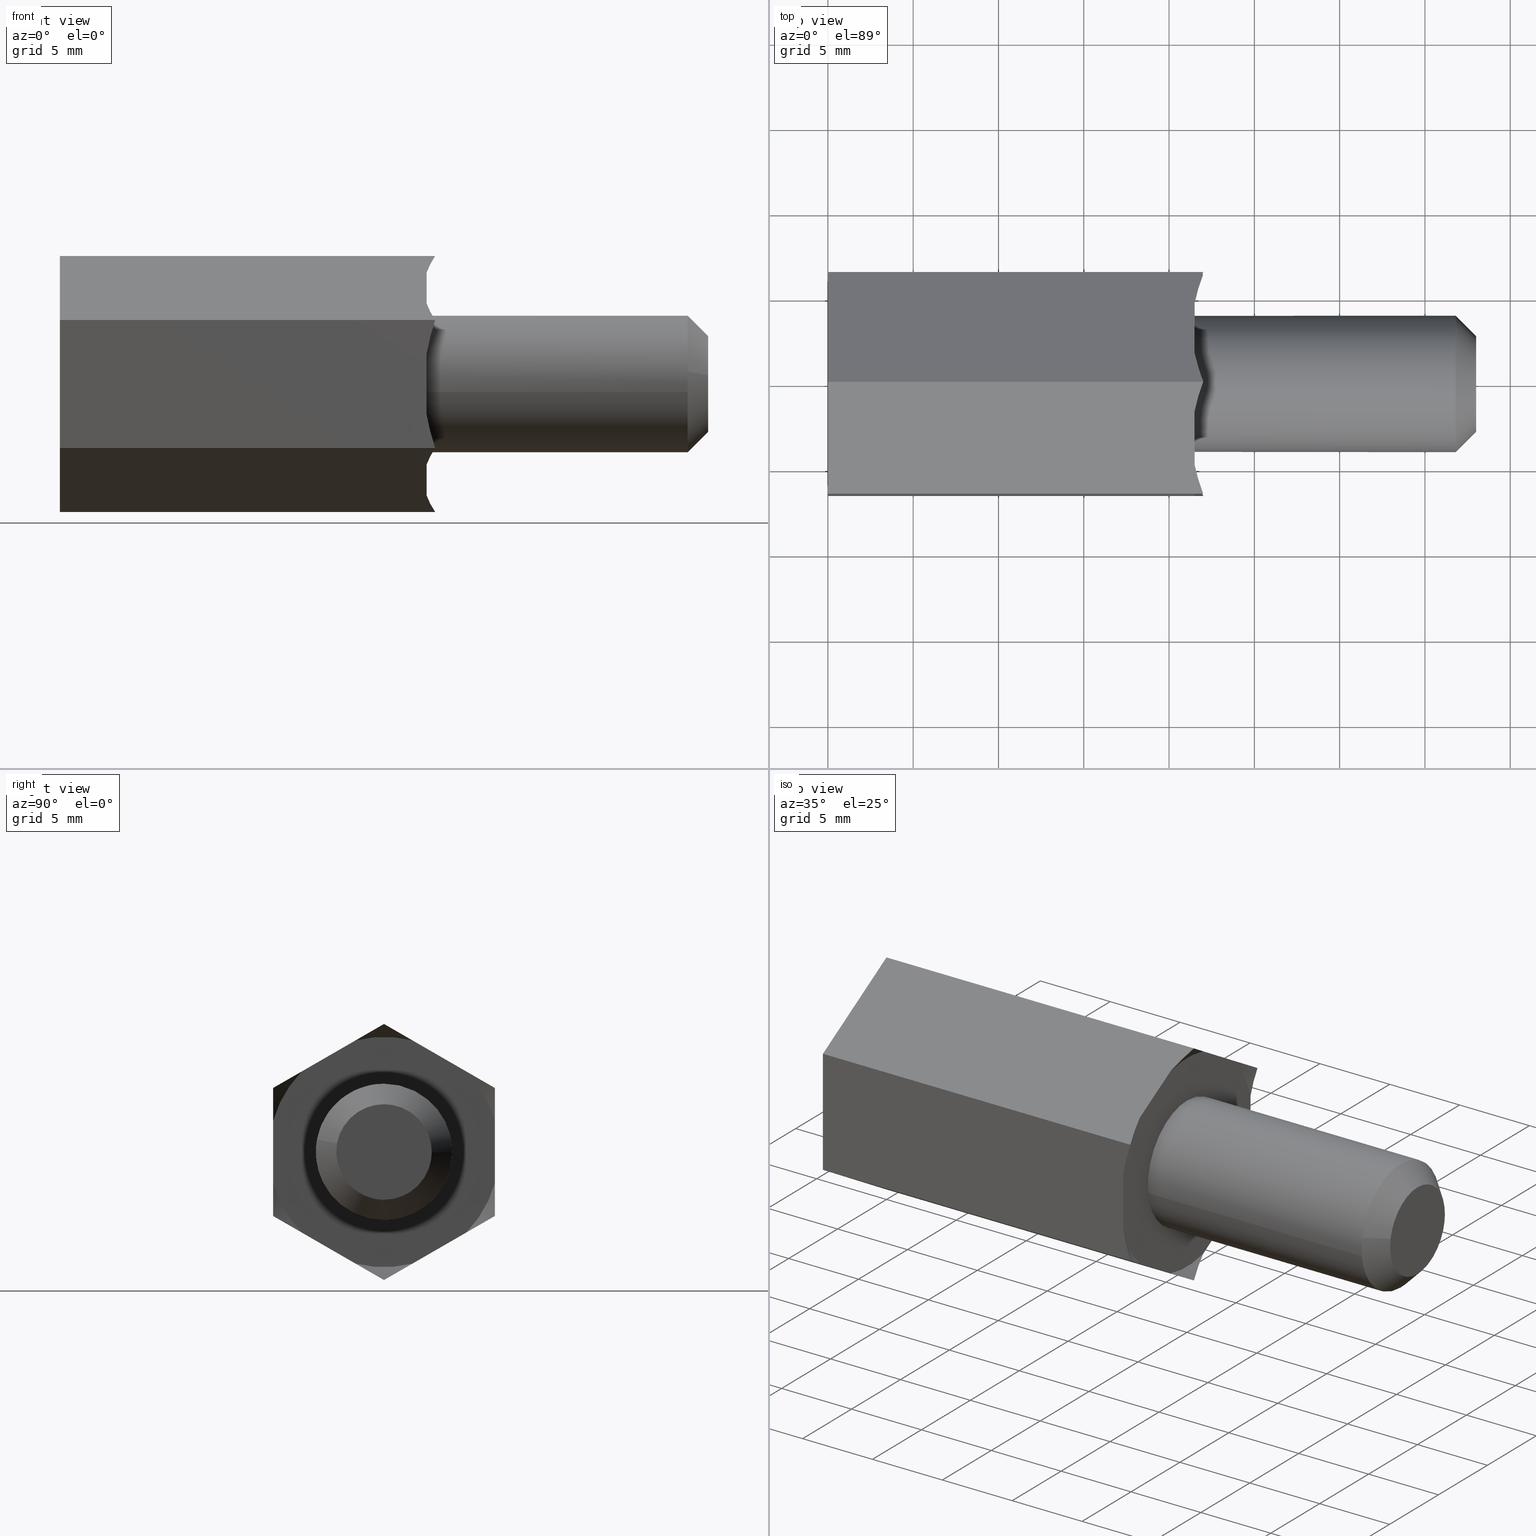
[diagram: canonical four-view strip — front | top / right | iso, engineering-drawing reading convention]
A machine part, canonical four-view strip (front | top / right | iso — engineering-drawing reading convention). The complete STEP part file that produces these views, byte-faithful:
ISO-10303-21;
HEADER;
/****************************************************************
 * Generated by software with PDE/Lib inside                    *
 * PDElib Version 4.4.1-0003, patched  Thursday August 19 11:58 *
 * International Technegroup Inc. (www.iti-oh.com)              *
 ****************************************************************/
FILE_DESCRIPTION((''),'2;1');
FILE_NAME('','2005-07-15T14:29:38',(''),(''),'','CADfix','');
FILE_SCHEMA(('AUTOMOTIVE_DESIGN'));
ENDSEC;
DATA;
#5=APPLICATION_CONTEXT('automotive design');
#6=APPLICATION_PROTOCOL_DEFINITION('Draft International Standard','automotive_design',1998,#5);
#7=PRODUCT_CONTEXT('None',#5,'mechanical');
#8=PRODUCT('nut','','None',(#7));
#9=PRODUCT_RELATED_PRODUCT_CATEGORY('part','description',(#8));
#10=PRODUCT_DEFINITION_FORMATION('None','None',#8);
#11=PRODUCT_DEFINITION_CONTEXT('part definition',#5,'design');
#12=PRODUCT_DEFINITION('None','None',#10,#11);
#18=(NAMED_UNIT(*)PLANE_ANGLE_UNIT()SI_UNIT($,.RADIAN.));
#19=DIMENSIONAL_EXPONENTS(0.0,0.0,0.0,0.0,0.0,0.0,0.0);
#20=PLANE_ANGLE_MEASURE_WITH_UNIT(PLANE_ANGLE_MEASURE(0.017453292500000),#18);
#24=(CONVERSION_BASED_UNIT('DEGREE',#20)NAMED_UNIT(#19)PLANE_ANGLE_UNIT());
#28=(NAMED_UNIT(*)SI_UNIT($,.STERADIAN.)SOLID_ANGLE_UNIT());
#32=(LENGTH_UNIT()NAMED_UNIT(*)SI_UNIT(.MILLI.,.METRE.));
#34=UNCERTAINTY_MEASURE_WITH_UNIT(LENGTH_MEASURE(0.001000000000000),#32,'DISTANCE_ACCURACY_VALUE','');
#36=(GEOMETRIC_REPRESENTATION_CONTEXT(3)GLOBAL_UNCERTAINTY_ASSIGNED_CONTEXT((#34))GLOBAL_UNIT_ASSIGNED_CONTEXT((#24,#28,#32))REPRESENTATION_CONTEXT('None','None'));
#37=AXIS2_PLACEMENT_3D('',#38,#39,#40);
#38=CARTESIAN_POINT('',(0.0,0.0,0.0));
#39=DIRECTION('',(0.0,0.0,1.0));
#40=DIRECTION('',(1.0,0.0,0.0));
#41=ADVANCED_BREP_SHAPE_REPRESENTATION('',(#37,#1153),#36);
#42=PRODUCT_DEFINITION_SHAPE('','',#12);
#43=SHAPE_DEFINITION_REPRESENTATION(#42,#41);
#44=CARTESIAN_POINT('',(14.350000000000000,-3.987669334932511,0.313836382911382));
#45=CARTESIAN_POINT('',(14.350000000000003,-3.673832952021128,4.301505717843893));
#46=CARTESIAN_POINT('',(14.350000000000000,0.313836382911382,3.987669334932511));
#47=CARTESIAN_POINT('',(14.350000000000003,4.301505717843893,3.673832952021128));
#48=CARTESIAN_POINT('',(14.350000000000000,3.987669334932511,-0.313836382911382));
#49=CARTESIAN_POINT('',(-0.358750000000001,-3.987669334932511,0.313836382911382));
#50=CARTESIAN_POINT('',(-0.358750000000001,-3.673832952021128,4.301505717843893));
#51=CARTESIAN_POINT('',(-0.358750000000001,0.313836382911382,3.987669334932511));
#52=CARTESIAN_POINT('',(-0.358750000000001,4.301505717843893,3.673832952021128));
#53=CARTESIAN_POINT('',(-0.358750000000001,3.987669334932511,-0.313836382911382));
#61=(BOUNDED_SURFACE()B_SPLINE_SURFACE(2,1,((#44,#49),(#45,#50),(#46,#51),(#47,#52),(#48,#53)),.UNSPECIFIED.,.F.,.F.,.U.)B_SPLINE_SURFACE_WITH_KNOTS((3,2,3),(2,2),(0.0,6.627416997969518,13.254833995939039),(0.0,14.708750000000000),.UNSPECIFIED.)GEOMETRIC_REPRESENTATION_ITEM()RATIONAL_B_SPLINE_SURFACE(((1.0,1.0),(0.707106781186548,0.707106781186548),(1.0,1.0),(0.707106781186548,0.707106781186548),(1.0,1.0)))REPRESENTATION_ITEM('')SURFACE());
#62=CARTESIAN_POINT('',(14.0,0.0,4.0));
#63=VERTEX_POINT('',#62);
#64=CARTESIAN_POINT('',(13.999999999999989,-3.987669541452164,0.313833758808308));
#65=VERTEX_POINT('',#64);
#66=CARTESIAN_POINT('',(14.0,0.0,4.0));
#67=CARTESIAN_POINT('',(14.000000000000004,-3.697564407354034,4.0));
#68=CARTESIAN_POINT('',(13.999999999999998,-3.987669541452164,0.313833758808308));
#76=(BOUNDED_CURVE()B_SPLINE_CURVE(2,(#66,#67,#68),.UNSPECIFIED.,.F.,.U.)B_SPLINE_CURVE_WITH_KNOTS((3,3),(0.0,0.236331413439403),.UNSPECIFIED.)CURVE()GEOMETRIC_REPRESENTATION_ITEM()RATIONAL_B_SPLINE_CURVE((1.0,0.723120526444002,0.969723591590778))REPRESENTATION_ITEM(''));
#77=EDGE_CURVE('',#63,#65,#76,.T.);
#78=ORIENTED_EDGE('',*,*,#77,.T.);
#79=CARTESIAN_POINT('',(1.526557E-015,-3.987669538968515,0.313833790366596));
#80=VERTEX_POINT('',#79);
#81=CARTESIAN_POINT('',(13.999999999999989,-3.987669541452164,0.313833758808308));
#82=CARTESIAN_POINT('',(1.526557E-015,-3.987669538968515,0.313833790366596));
#83=QUASI_UNIFORM_CURVE('',1,(#81,#82),.UNSPECIFIED.,.F.,.U.);
#84=EDGE_CURVE('',#65,#80,#83,.T.);
#85=ORIENTED_EDGE('',*,*,#84,.T.);
#86=CARTESIAN_POINT('',(0.0,0.0,4.0));
#87=VERTEX_POINT('',#86);
#88=CARTESIAN_POINT('',(0.0,0.0,4.0));
#89=CARTESIAN_POINT('',(0.0,-3.697564378001145,4.0));
#90=CARTESIAN_POINT('',(1.526557E-015,-3.987669538968516,0.313833790366596));
#98=(BOUNDED_CURVE()B_SPLINE_CURVE(2,(#88,#89,#90),.UNSPECIFIED.,.F.,.U.)B_SPLINE_CURVE_WITH_KNOTS((3,3),(0.0,0.236331412082755),.UNSPECIFIED.)CURVE()GEOMETRIC_REPRESENTATION_ITEM()RATIONAL_B_SPLINE_CURVE((1.0,0.723120528033414,0.969723588759554))REPRESENTATION_ITEM(''));
#99=EDGE_CURVE('',#87,#80,#98,.T.);
#100=ORIENTED_EDGE('',*,*,#99,.F.);
#101=CARTESIAN_POINT('',(6.938894E-016,3.987669538968515,-0.313833790366597));
#102=VERTEX_POINT('',#101);
#103=CARTESIAN_POINT('',(6.938894E-016,3.987669538968515,-0.313833790366597));
#104=CARTESIAN_POINT('',(0.0,4.000000000000001,-0.157159125742779));
#105=CARTESIAN_POINT('',(0.0,4.0,0.0));
#106=CARTESIAN_POINT('',(0.0,4.000000000000000,4.000000000000000));
#107=CARTESIAN_POINT('',(0.0,0.0,4.0));
#115=(BOUNDED_CURVE()B_SPLINE_CURVE(2,(#103,#104,#105,#106,#107),.UNSPECIFIED.,.F.,.U.)B_SPLINE_CURVE_WITH_KNOTS((3,2,3),(0.736331412082755,0.750000000000000,1.0),.UNSPECIFIED.)CURVE()GEOMETRIC_REPRESENTATION_ITEM()RATIONAL_B_SPLINE_CURVE((0.969723588759554,0.983986253153133,1.0,0.707106781186548,1.0))REPRESENTATION_ITEM(''));
#116=EDGE_CURVE('',#102,#87,#115,.T.);
#117=ORIENTED_EDGE('',*,*,#116,.F.);
#118=CARTESIAN_POINT('',(13.999999999999989,3.987669541452164,-0.313833758808309));
#119=VERTEX_POINT('',#118);
#120=CARTESIAN_POINT('',(13.999999999999989,3.987669541452164,-0.313833758808309));
#121=CARTESIAN_POINT('',(6.938894E-016,3.987669538968515,-0.313833790366597));
#122=QUASI_UNIFORM_CURVE('',1,(#120,#121),.UNSPECIFIED.,.F.,.U.);
#123=EDGE_CURVE('',#119,#102,#122,.T.);
#124=ORIENTED_EDGE('',*,*,#123,.F.);
#125=CARTESIAN_POINT('',(13.999999999999998,3.987669541452164,-0.313833758808309));
#126=CARTESIAN_POINT('',(14.000000000000004,4.0,-0.157159109890411));
#127=CARTESIAN_POINT('',(14.0,4.0,0.0));
#128=CARTESIAN_POINT('',(13.999999999999998,4.000000000000000,4.000000000000000));
#129=CARTESIAN_POINT('',(14.0,0.0,4.0));
#137=(BOUNDED_CURVE()B_SPLINE_CURVE(2,(#125,#126,#127,#128,#129),.UNSPECIFIED.,.F.,.U.)B_SPLINE_CURVE_WITH_KNOTS((3,2,3),(0.736331413439403,0.750000000000000,1.0),.UNSPECIFIED.)CURVE()GEOMETRIC_REPRESENTATION_ITEM()RATIONAL_B_SPLINE_CURVE((0.969723591590778,0.983986254742546,1.0,0.707106781186548,1.0))REPRESENTATION_ITEM(''));
#138=EDGE_CURVE('',#119,#63,#137,.T.);
#139=ORIENTED_EDGE('',*,*,#138,.T.);
#140=EDGE_LOOP('',(#78,#85,#100,#117,#124,#139));
#141=FACE_OUTER_BOUND('',#140,.T.);
#142=ADVANCED_FACE('',(#141),#61,.F.);
#143=CARTESIAN_POINT('',(14.350000000000000,3.987669334932511,-0.313836382911382));
#144=CARTESIAN_POINT('',(14.350000000000003,3.673832952021128,-4.301505717843893));
#145=CARTESIAN_POINT('',(14.350000000000000,-0.313836382911382,-3.987669334932511));
#146=CARTESIAN_POINT('',(14.350000000000003,-4.301505717843893,-3.673832952021128));
#147=CARTESIAN_POINT('',(14.350000000000000,-3.987669334932511,0.313836382911382));
#148=CARTESIAN_POINT('',(-0.358750000000001,3.987669334932511,-0.313836382911382));
#149=CARTESIAN_POINT('',(-0.358750000000001,3.673832952021128,-4.301505717843893));
#150=CARTESIAN_POINT('',(-0.358750000000001,-0.313836382911382,-3.987669334932511));
#151=CARTESIAN_POINT('',(-0.358750000000001,-4.301505717843893,-3.673832952021128));
#152=CARTESIAN_POINT('',(-0.358750000000001,-3.987669334932511,0.313836382911382));
#160=(BOUNDED_SURFACE()B_SPLINE_SURFACE(2,1,((#143,#148),(#144,#149),(#145,#150),(#146,#151),(#147,#152)),.UNSPECIFIED.,.F.,.F.,.U.)B_SPLINE_SURFACE_WITH_KNOTS((3,2,3),(2,2),(0.0,6.627416997969518,13.254833995939039),(0.0,14.708750000000000),.UNSPECIFIED.)GEOMETRIC_REPRESENTATION_ITEM()RATIONAL_B_SPLINE_SURFACE(((1.0,1.0),(0.707106781186548,0.707106781186548),(1.0,1.0),(0.707106781186548,0.707106781186548),(1.0,1.0)))REPRESENTATION_ITEM('')SURFACE());
#161=CARTESIAN_POINT('',(14.0,0.0,-4.0));
#162=VERTEX_POINT('',#161);
#163=CARTESIAN_POINT('',(13.999999999999998,-3.987669541452164,0.313833758808308));
#164=CARTESIAN_POINT('',(14.000000000000004,-4.0,0.157159109890411));
#165=CARTESIAN_POINT('',(14.0,-4.0,0.0));
#166=CARTESIAN_POINT('',(13.999999999999998,-4.000000000000000,-4.000000000000000));
#167=CARTESIAN_POINT('',(14.0,0.0,-4.0));
#175=(BOUNDED_CURVE()B_SPLINE_CURVE(2,(#163,#164,#165,#166,#167),.UNSPECIFIED.,.F.,.U.)B_SPLINE_CURVE_WITH_KNOTS((3,2,3),(0.236331413439403,0.250000000000000,0.500000000000000),.UNSPECIFIED.)CURVE()GEOMETRIC_REPRESENTATION_ITEM()RATIONAL_B_SPLINE_CURVE((0.969723591590778,0.983986254742546,1.0,0.707106781186548,1.0))REPRESENTATION_ITEM(''));
#176=EDGE_CURVE('',#65,#162,#175,.T.);
#177=ORIENTED_EDGE('',*,*,#176,.T.);
#178=CARTESIAN_POINT('',(14.0,0.0,-4.0));
#179=CARTESIAN_POINT('',(14.000000000000004,3.697564407354034,-4.0));
#180=CARTESIAN_POINT('',(13.999999999999998,3.987669541452164,-0.313833758808309));
#188=(BOUNDED_CURVE()B_SPLINE_CURVE(2,(#178,#179,#180),.UNSPECIFIED.,.F.,.U.)B_SPLINE_CURVE_WITH_KNOTS((3,3),(0.500000000000000,0.736331413439403),.UNSPECIFIED.)CURVE()GEOMETRIC_REPRESENTATION_ITEM()RATIONAL_B_SPLINE_CURVE((1.0,0.723120526444002,0.969723591590778))REPRESENTATION_ITEM(''));
#189=EDGE_CURVE('',#162,#119,#188,.T.);
#190=ORIENTED_EDGE('',*,*,#189,.T.);
#191=ORIENTED_EDGE('',*,*,#123,.T.);
#192=CARTESIAN_POINT('',(0.0,0.0,-4.0));
#193=VERTEX_POINT('',#192);
#194=CARTESIAN_POINT('',(0.0,0.0,-4.0));
#195=CARTESIAN_POINT('',(0.0,3.697564378001145,-4.0));
#196=CARTESIAN_POINT('',(6.938894E-016,3.987669538968515,-0.313833790366597));
#204=(BOUNDED_CURVE()B_SPLINE_CURVE(2,(#194,#195,#196),.UNSPECIFIED.,.F.,.U.)B_SPLINE_CURVE_WITH_KNOTS((3,3),(0.500000000000000,0.736331412082755),.UNSPECIFIED.)CURVE()GEOMETRIC_REPRESENTATION_ITEM()RATIONAL_B_SPLINE_CURVE((1.0,0.723120528033414,0.969723588759554))REPRESENTATION_ITEM(''));
#205=EDGE_CURVE('',#193,#102,#204,.T.);
#206=ORIENTED_EDGE('',*,*,#205,.F.);
#207=CARTESIAN_POINT('',(1.526557E-015,-3.987669538968516,0.313833790366596));
#208=CARTESIAN_POINT('',(0.0,-4.000000000000001,0.157159125742779));
#209=CARTESIAN_POINT('',(0.0,-4.0,0.0));
#210=CARTESIAN_POINT('',(0.0,-4.000000000000000,-4.000000000000000));
#211=CARTESIAN_POINT('',(0.0,0.0,-4.0));
#219=(BOUNDED_CURVE()B_SPLINE_CURVE(2,(#207,#208,#209,#210,#211),.UNSPECIFIED.,.F.,.U.)B_SPLINE_CURVE_WITH_KNOTS((3,2,3),(0.236331412082755,0.250000000000000,0.500000000000000),.UNSPECIFIED.)CURVE()GEOMETRIC_REPRESENTATION_ITEM()RATIONAL_B_SPLINE_CURVE((0.969723588759554,0.983986253153133,1.0,0.707106781186548,1.0))REPRESENTATION_ITEM(''));
#220=EDGE_CURVE('',#80,#193,#219,.T.);
#221=ORIENTED_EDGE('',*,*,#220,.F.);
#222=ORIENTED_EDGE('',*,*,#84,.F.);
#223=EDGE_LOOP('',(#177,#190,#191,#206,#221,#222));
#224=FACE_OUTER_BOUND('',#223,.T.);
#225=ADVANCED_FACE('',(#224),#160,.F.);
#226=CARTESIAN_POINT('',(38.030000000000015,-2.723159001914594,0.507252452228140));
#227=CARTESIAN_POINT('',(38.030000000000001,-2.297913917699555,2.790159068082791));
#228=CARTESIAN_POINT('',(38.030000000000008,0.024172503330496,2.769894526887745));
#229=CARTESIAN_POINT('',(38.030000000000008,2.794067030218240,2.745722023557250));
#230=CARTESIAN_POINT('',(38.030000000000008,2.769894526887745,-0.024172503330496));
#231=CARTESIAN_POINT('',(36.769250000000000,-3.962589583742731,0.738125567443537));
#232=CARTESIAN_POINT('',(36.769249999999985,-3.343796578977463,4.060084355117265));
#233=CARTESIAN_POINT('',(36.769249999999992,0.035174482960071,4.030596521390938));
#234=CARTESIAN_POINT('',(36.769249999999992,4.065771004351008,3.995422038430867));
#235=CARTESIAN_POINT('',(36.769249999999992,4.030596521390938,-0.035174482960071));
#243=(BOUNDED_SURFACE()B_SPLINE_SURFACE(2,1,((#226,#231),(#227,#232),(#228,#233),(#229,#234),(#230,#235)),.UNSPECIFIED.,.F.,.F.,.U.)B_SPLINE_SURFACE_WITH_KNOTS((3,2,3),(2,2),(0.0,5.876961434204485,12.555326700345949),(0.0,1.0),.UNSPECIFIED.)GEOMETRIC_REPRESENTATION_ITEM()RATIONAL_B_SPLINE_SURFACE(((0.938140952186599,0.938140952186599),(0.742253967444162,0.742253967444162),(1.0,1.0),(0.707106781186548,0.707106781186548),(1.0,1.0)))REPRESENTATION_ITEM('')SURFACE());
#244=CARTESIAN_POINT('',(36.799999999984472,-3.932359569543480,0.732494515982311));
#245=VERTEX_POINT('',#244);
#246=CARTESIAN_POINT('',(36.799999999999997,0.0,4.0));
#247=VERTEX_POINT('',#246);
#248=CARTESIAN_POINT('',(36.799999999984465,-3.932359569543480,0.732494515982311));
#249=CARTESIAN_POINT('',(36.799999999999997,-3.323709773880725,4.0));
#250=CARTESIAN_POINT('',(36.799999999999997,0.0,4.0));
#258=(BOUNDED_CURVE()B_SPLINE_CURVE(2,(#248,#249,#250),.UNSPECIFIED.,.F.,.U.)B_SPLINE_CURVE_WITH_KNOTS((3,3),(0.281445263723857,0.500000000000000),.UNSPECIFIED.)CURVE()GEOMETRIC_REPRESENTATION_ITEM()RATIONAL_B_SPLINE_CURVE((0.935586817218081,0.743947199220621,1.0))REPRESENTATION_ITEM(''));
#259=EDGE_CURVE('',#245,#247,#258,.T.);
#260=ORIENTED_EDGE('',*,*,#259,.F.);
#261=CARTESIAN_POINT('',(37.999999999979337,-2.752651698675086,0.512746161269732));
#262=VERTEX_POINT('',#261);
#263=CARTESIAN_POINT('',(37.999999999979337,-2.752651698675086,0.512746161269732));
#264=CARTESIAN_POINT('',(36.799999999984472,-3.932359569543480,0.732494515982311));
#265=QUASI_UNIFORM_CURVE('',1,(#263,#264),.UNSPECIFIED.,.F.,.U.);
#266=EDGE_CURVE('',#262,#245,#265,.T.);
#267=ORIENTED_EDGE('',*,*,#266,.F.);
#268=CARTESIAN_POINT('',(38.0,0.0,2.800000000000000));
#269=VERTEX_POINT('',#268);
#270=CARTESIAN_POINT('',(38.0,0.0,2.800000000000000));
#271=CARTESIAN_POINT('',(38.0,-2.326596841578378,2.799999999999999));
#272=CARTESIAN_POINT('',(37.999999999979345,-2.752651698675086,0.512746161269732));
#280=(BOUNDED_CURVE()B_SPLINE_CURVE(2,(#270,#271,#272),.UNSPECIFIED.,.F.,.U.)B_SPLINE_CURVE_WITH_KNOTS((3,3),(0.500000000000000,0.718554736266490),.UNSPECIFIED.)CURVE()GEOMETRIC_REPRESENTATION_ITEM()RATIONAL_B_SPLINE_CURVE((1.0,0.743947199231931,0.935586817201153))REPRESENTATION_ITEM(''));
#281=EDGE_CURVE('',#269,#262,#280,.T.);
#282=ORIENTED_EDGE('',*,*,#281,.F.);
#283=CARTESIAN_POINT('',(37.999999999977057,2.799893384601154,-0.024434299563725));
#284=VERTEX_POINT('',#283);
#285=CARTESIAN_POINT('',(37.999999999977057,2.799893384601154,-0.024434299563725));
#286=CARTESIAN_POINT('',(38.0,2.799999999999999,-0.012217382466052));
#287=CARTESIAN_POINT('',(38.0,2.800000000000000,0.0));
#288=CARTESIAN_POINT('',(37.999999999999993,2.800000000000000,2.800000000000000));
#289=CARTESIAN_POINT('',(38.0,0.0,2.800000000000000));
#297=(BOUNDED_CURVE()B_SPLINE_CURVE(2,(#285,#286,#287,#288,#289),.UNSPECIFIED.,.F.,.U.)B_SPLINE_CURVE_WITH_KNOTS((3,2,3),(0.248460105643865,0.250000000000000,0.500000000000000),.UNSPECIFIED.)CURVE()GEOMETRIC_REPRESENTATION_ITEM()RATIONAL_B_SPLINE_CURVE((0.996414028051464,0.998195901541596,1.0,0.707106781186547,1.0))REPRESENTATION_ITEM(''));
#298=EDGE_CURVE('',#284,#269,#297,.T.);
#299=ORIENTED_EDGE('',*,*,#298,.F.);
#300=CARTESIAN_POINT('',(36.799999999977892,3.999847692277395,-0.034906142155650));
#301=VERTEX_POINT('',#300);
#302=CARTESIAN_POINT('',(37.999999999977057,2.799893384601154,-0.024434299563725));
#303=CARTESIAN_POINT('',(36.799999999977892,3.999847692277395,-0.034906142155650));
#304=QUASI_UNIFORM_CURVE('',1,(#302,#303),.UNSPECIFIED.,.F.,.U.);
#305=EDGE_CURVE('',#284,#301,#304,.T.);
#306=ORIENTED_EDGE('',*,*,#305,.T.);
#307=CARTESIAN_POINT('',(36.799999999999997,3.992539193685000,0.244194158179768));
#308=VERTEX_POINT('',#307);
#309=CARTESIAN_POINT('',(36.799999999999997,3.992539193685000,0.244194158179768));
#310=CARTESIAN_POINT('',(36.799999999999997,4.000000000000001,0.122211053234808));
#311=CARTESIAN_POINT('',(36.799999999999997,4.0,0.0));
#312=CARTESIAN_POINT('',(36.799999999999997,4.000000000000001,-0.017453403444772));
#313=CARTESIAN_POINT('',(36.799999999977885,3.999847692277395,-0.034906142155650));
#321=(BOUNDED_CURVE()B_SPLINE_CURVE(2,(#309,#310,#311,#312,#313),.UNSPECIFIED.,.F.,.U.)B_SPLINE_CURVE_WITH_KNOTS((3,2,3),(0.739332962238482,0.750000000000000,0.751539894349251),.UNSPECIFIED.)CURVE()GEOMETRIC_REPRESENTATION_ITEM()RATIONAL_B_SPLINE_CURVE((0.976072041665729,0.987502787899297,1.0,0.998195901549660,0.996414028067394))REPRESENTATION_ITEM(''));
#322=EDGE_CURVE('',#308,#301,#321,.T.);
#323=ORIENTED_EDGE('',*,*,#322,.F.);
#324=CARTESIAN_POINT('',(36.799999999999997,0.0,4.0));
#325=CARTESIAN_POINT('',(36.800000000000004,3.762824267546587,4.000000000000000));
#326=CARTESIAN_POINT('',(36.799999999999997,3.992539193685000,0.244194158179768));
#334=(BOUNDED_CURVE()B_SPLINE_CURVE(2,(#324,#325,#326),.UNSPECIFIED.,.F.,.U.)B_SPLINE_CURVE_WITH_KNOTS((3,3),(0.500000000000000,0.739332962238481),.UNSPECIFIED.)CURVE()GEOMETRIC_REPRESENTATION_ITEM()RATIONAL_B_SPLINE_CURVE((1.0,0.719603993287251,0.976072041665728))REPRESENTATION_ITEM(''));
#335=EDGE_CURVE('',#247,#308,#334,.T.);
#336=ORIENTED_EDGE('',*,*,#335,.F.);
#337=EDGE_LOOP('',(#260,#267,#282,#299,#306,#323,#336));
#338=FACE_OUTER_BOUND('',#337,.T.);
#339=ADVANCED_FACE('',(#338),#243,.T.);
#340=CARTESIAN_POINT('',(38.030000000000008,2.769894526887745,-0.024172503330496));
#341=CARTESIAN_POINT('',(38.030000000000008,2.745722023557250,-2.794067030218240));
#342=CARTESIAN_POINT('',(38.030000000000008,-0.024172503330496,-2.769894526887745));
#343=CARTESIAN_POINT('',(38.030000000000008,-2.794067030218240,-2.745722023557250));
#344=CARTESIAN_POINT('',(38.030000000000008,-2.769894526887745,0.024172503330496));
#345=CARTESIAN_POINT('',(38.030000000000008,-2.767768705318304,0.267767527388552));
#346=CARTESIAN_POINT('',(38.030000000000015,-2.723159001914594,0.507252452228140));
#347=CARTESIAN_POINT('',(36.769249999999992,4.030596521390938,-0.035174482960071));
#348=CARTESIAN_POINT('',(36.769249999999992,3.995422038430867,-4.065771004351008));
#349=CARTESIAN_POINT('',(36.769249999999992,-0.035174482960071,-4.030596521390938));
#350=CARTESIAN_POINT('',(36.769249999999992,-4.065771004351008,-3.995422038430867));
#351=CARTESIAN_POINT('',(36.769249999999992,-4.030596521390938,0.035174482960071));
#352=CARTESIAN_POINT('',(36.769249999999992,-4.027503144029557,0.389640419141306));
#353=CARTESIAN_POINT('',(36.769250000000000,-3.962589583742731,0.738125567443537));
#361=(BOUNDED_SURFACE()B_SPLINE_SURFACE(2,1,((#340,#347),(#341,#348),(#342,#349),(#343,#350),(#344,#351),(#345,#352),(#346,#353)),.UNSPECIFIED.,.F.,.F.,.U.)B_SPLINE_SURFACE_WITH_KNOTS((3,2,2,3),(2,2),(0.0,6.678365266141462,13.356730532282921,14.158134364219899),(0.0,1.0),.UNSPECIFIED.)GEOMETRIC_REPRESENTATION_ITEM()RATIONAL_B_SPLINE_SURFACE(((1.0,1.0),(0.707106781186548,0.707106781186548),(1.0,1.0),(0.707106781186548,0.707106781186548),(1.0,1.0),(0.964852813742386,0.964852813742386),(0.938140952186599,0.938140952186599)))REPRESENTATION_ITEM('')SURFACE());
#362=CARTESIAN_POINT('',(36.799999999999997,-3.972038105450791,-0.472136938659628));
#363=VERTEX_POINT('',#362);
#364=CARTESIAN_POINT('',(36.799999999999997,-3.972038105450792,-0.472136938659628));
#365=CARTESIAN_POINT('',(36.799999999999997,-4.000000000000001,-0.236896478640579));
#366=CARTESIAN_POINT('',(36.799999999999997,-4.0,0.0));
#367=CARTESIAN_POINT('',(36.799999999999997,-4.0,0.369370303848572));
#368=CARTESIAN_POINT('',(36.799999999984458,-3.932359569543480,0.732494515982311));
#376=(BOUNDED_CURVE()B_SPLINE_CURVE(2,(#364,#365,#366,#367,#368),.UNSPECIFIED.,.F.,.U.)B_SPLINE_CURVE_WITH_KNOTS((3,2,3),(0.229562473512871,0.250000000000000,0.281445263723857),.UNSPECIFIED.)CURVE()GEOMETRIC_REPRESENTATION_ITEM()RATIONAL_B_SPLINE_CURVE((0.956026754182449,0.976055948330398,1.0,0.963159581965927,0.935586817218082))REPRESENTATION_ITEM(''));
#377=EDGE_CURVE('',#363,#245,#376,.T.);
#378=ORIENTED_EDGE('',*,*,#377,.F.);
#379=CARTESIAN_POINT('',(36.799999999999997,0.0,-4.0));
#380=VERTEX_POINT('',#379);
#381=CARTESIAN_POINT('',(36.799999999999997,0.0,-4.0));
#382=CARTESIAN_POINT('',(36.799999999999997,-3.552698103746752,-4.0));
#383=CARTESIAN_POINT('',(36.799999999999990,-3.972038105450791,-0.472136938659628));
#391=(BOUNDED_CURVE()B_SPLINE_CURVE(2,(#381,#382,#383),.UNSPECIFIED.,.F.,.U.)B_SPLINE_CURVE_WITH_KNOTS((3,3),(0.0,0.229562473512871),.UNSPECIFIED.)CURVE()GEOMETRIC_REPRESENTATION_ITEM()RATIONAL_B_SPLINE_CURVE((1.0,0.731050832856150,0.956026754182449))REPRESENTATION_ITEM(''));
#392=EDGE_CURVE('',#380,#363,#391,.T.);
#393=ORIENTED_EDGE('',*,*,#392,.F.);
#394=CARTESIAN_POINT('',(36.799999999977892,3.999847692277395,-0.034906142155650));
#395=CARTESIAN_POINT('',(36.799999999999997,3.965244842058780,-4.000000000000000));
#396=CARTESIAN_POINT('',(36.799999999999997,0.0,-4.0));
#404=(BOUNDED_CURVE()B_SPLINE_CURVE(2,(#394,#395,#396),.UNSPECIFIED.,.F.,.U.)B_SPLINE_CURVE_WITH_KNOTS((3,3),(0.751539894349252,1.0),.UNSPECIFIED.)CURVE()GEOMETRIC_REPRESENTATION_ITEM()RATIONAL_B_SPLINE_CURVE((0.996414028067393,0.708910879636888,1.0))REPRESENTATION_ITEM(''));
#405=EDGE_CURVE('',#301,#380,#404,.T.);
#406=ORIENTED_EDGE('',*,*,#405,.F.);
#407=ORIENTED_EDGE('',*,*,#305,.F.);
#408=CARTESIAN_POINT('',(38.0,0.0,-2.800000000000000));
#409=VERTEX_POINT('',#408);
#410=CARTESIAN_POINT('',(38.0,0.0,-2.800000000000000));
#411=CARTESIAN_POINT('',(38.000000000000007,2.775671389332678,-2.800000000000000));
#412=CARTESIAN_POINT('',(37.999999999977057,2.799893384601154,-0.024434299563725));
#420=(BOUNDED_CURVE()B_SPLINE_CURVE(2,(#410,#411,#412),.UNSPECIFIED.,.F.,.U.)B_SPLINE_CURVE_WITH_KNOTS((3,3),(0.0,0.248460105643865),.UNSPECIFIED.)CURVE()GEOMETRIC_REPRESENTATION_ITEM()RATIONAL_B_SPLINE_CURVE((1.0,0.708910879644951,0.996414028051464))REPRESENTATION_ITEM(''));
#421=EDGE_CURVE('',#409,#284,#420,.T.);
#422=ORIENTED_EDGE('',*,*,#421,.F.);
#423=CARTESIAN_POINT('',(37.999999999979337,-2.752651698675086,0.512746161269732));
#424=CARTESIAN_POINT('',(38.0,-2.800000000000000,0.258559212776404));
#425=CARTESIAN_POINT('',(38.0,-2.800000000000000,0.0));
#426=CARTESIAN_POINT('',(37.999999999999993,-2.800000000000000,-2.800000000000000));
#427=CARTESIAN_POINT('',(38.0,0.0,-2.800000000000000));
#435=(BOUNDED_CURVE()B_SPLINE_CURVE(2,(#423,#424,#425,#426,#427),.UNSPECIFIED.,.F.,.U.)B_SPLINE_CURVE_WITH_KNOTS((3,2,3),(0.718554736266490,0.750000000000000,1.0),.UNSPECIFIED.)CURVE()GEOMETRIC_REPRESENTATION_ITEM()RATIONAL_B_SPLINE_CURVE((0.935586817201154,0.963159581954618,1.0,0.707106781186547,1.0))REPRESENTATION_ITEM(''));
#436=EDGE_CURVE('',#262,#409,#435,.T.);
#437=ORIENTED_EDGE('',*,*,#436,.F.);
#438=ORIENTED_EDGE('',*,*,#266,.T.);
#439=EDGE_LOOP('',(#378,#393,#406,#407,#422,#437,#438));
#440=FACE_OUTER_BOUND('',#439,.T.);
#441=ADVANCED_FACE('',(#440),#361,.T.);
#442=CARTESIAN_POINT('',(37.182500000000005,-3.972038105454666,-0.472136938627034));
#443=CARTESIAN_POINT('',(37.182500000000005,-3.985550461794422,-0.358458914551911));
#444=CARTESIAN_POINT('',(37.182500000000012,-3.992539193687467,-0.244194158139428));
#445=CARTESIAN_POINT('',(37.182500000000005,-4.236733351826894,3.748345035548039));
#446=CARTESIAN_POINT('',(37.182500000000012,-0.244194158139428,3.992539193687467));
#447=CARTESIAN_POINT('',(37.182500000000005,3.748345035548039,4.236733351826894));
#448=CARTESIAN_POINT('',(37.182500000000012,3.992539193687467,0.244194158139428));
#449=CARTESIAN_POINT('',(21.107937500000006,-3.972038105454666,-0.472136938627034));
#450=CARTESIAN_POINT('',(21.107937499999998,-3.985550461794422,-0.358458914551911));
#451=CARTESIAN_POINT('',(21.107937499999998,-3.992539193687467,-0.244194158139428));
#452=CARTESIAN_POINT('',(21.107937499999998,-4.236733351826894,3.748345035548039));
#453=CARTESIAN_POINT('',(21.107937499999998,-0.244194158139428,3.992539193687467));
#454=CARTESIAN_POINT('',(21.107937499999998,3.748345035548039,4.236733351826894));
#455=CARTESIAN_POINT('',(21.107937499999998,3.992539193687467,0.244194158139428));
#463=(BOUNDED_SURFACE()B_SPLINE_SURFACE(2,1,((#442,#449),(#443,#450),(#444,#451),(#445,#452),(#446,#453),(#447,#454),(#448,#455)),.UNSPECIFIED.,.F.,.F.,.U.)B_SPLINE_SURFACE_WITH_KNOTS((3,2,2,3),(2,2),(0.0,0.265096679918781,6.892513677888299,13.519930675857820),(0.0,16.074562500000010),.UNSPECIFIED.)GEOMETRIC_REPRESENTATION_ITEM()RATIONAL_B_SPLINE_SURFACE(((0.977505800795127,0.977505800795127),(0.988284271247462,0.988284271247462),(1.0,1.0),(0.707106781186548,0.707106781186548),(1.0,1.0),(0.707106781186548,0.707106781186548),(1.0,1.0)))REPRESENTATION_ITEM('')SURFACE());
#464=CARTESIAN_POINT('',(21.500000000000000,-3.972038105450791,-0.472136938659629));
#465=VERTEX_POINT('',#464);
#466=CARTESIAN_POINT('',(21.500000000000000,0.0,4.0));
#467=VERTEX_POINT('',#466);
#468=CARTESIAN_POINT('',(21.499999999999993,-3.972038105450791,-0.472136938659628));
#469=CARTESIAN_POINT('',(21.500000000000000,-4.0,-0.236896478640580));
#470=CARTESIAN_POINT('',(21.500000000000000,-4.0,0.0));
#471=CARTESIAN_POINT('',(21.499999999999996,-4.000000000000000,4.000000000000000));
#472=CARTESIAN_POINT('',(21.500000000000000,0.0,4.0));
#480=(BOUNDED_CURVE()B_SPLINE_CURVE(2,(#468,#469,#470,#471,#472),.UNSPECIFIED.,.F.,.U.)B_SPLINE_CURVE_WITH_KNOTS((3,2,3),(0.729562473512871,0.750000000000000,1.0),.UNSPECIFIED.)CURVE()GEOMETRIC_REPRESENTATION_ITEM()RATIONAL_B_SPLINE_CURVE((0.956026754182449,0.976055948330398,1.0,0.707106781186548,1.0))REPRESENTATION_ITEM(''));
#481=EDGE_CURVE('',#465,#467,#480,.T.);
#482=ORIENTED_EDGE('',*,*,#481,.F.);
#483=CARTESIAN_POINT('',(36.799999999999997,-3.972038105450791,-0.472136938659628));
#484=CARTESIAN_POINT('',(21.500000000000000,-3.972038105450791,-0.472136938659629));
#485=QUASI_UNIFORM_CURVE('',1,(#483,#484),.UNSPECIFIED.,.F.,.U.);
#486=EDGE_CURVE('',#363,#465,#485,.T.);
#487=ORIENTED_EDGE('',*,*,#486,.F.);
#488=ORIENTED_EDGE('',*,*,#377,.T.);
#489=ORIENTED_EDGE('',*,*,#259,.T.);
#490=ORIENTED_EDGE('',*,*,#335,.T.);
#491=CARTESIAN_POINT('',(21.500000000000000,3.992539193685000,0.244194158179767));
#492=VERTEX_POINT('',#491);
#493=CARTESIAN_POINT('',(36.799999999999997,3.992539193685000,0.244194158179768));
#494=CARTESIAN_POINT('',(21.500000000000000,3.992539193685000,0.244194158179767));
#495=QUASI_UNIFORM_CURVE('',1,(#493,#494),.UNSPECIFIED.,.F.,.U.);
#496=EDGE_CURVE('',#308,#492,#495,.T.);
#497=ORIENTED_EDGE('',*,*,#496,.T.);
#498=CARTESIAN_POINT('',(21.500000000000000,0.0,4.0));
#499=CARTESIAN_POINT('',(21.500000000000000,3.762824267546601,4.000000000000001));
#500=CARTESIAN_POINT('',(21.500000000000004,3.992539193685000,0.244194158179767));
#508=(BOUNDED_CURVE()B_SPLINE_CURVE(2,(#498,#499,#500),.UNSPECIFIED.,.F.,.U.)B_SPLINE_CURVE_WITH_KNOTS((3,3),(0.0,0.239332962238482),.UNSPECIFIED.)CURVE()GEOMETRIC_REPRESENTATION_ITEM()RATIONAL_B_SPLINE_CURVE((1.0,0.719603993287251,0.976072041665729))REPRESENTATION_ITEM(''));
#509=EDGE_CURVE('',#467,#492,#508,.T.);
#510=ORIENTED_EDGE('',*,*,#509,.F.);
#511=EDGE_LOOP('',(#482,#487,#488,#489,#490,#497,#510));
#512=FACE_OUTER_BOUND('',#511,.T.);
#513=ADVANCED_FACE('',(#512),#463,.T.);
#514=CARTESIAN_POINT('',(37.182500000000012,3.992539193687467,0.244194158139428));
#515=CARTESIAN_POINT('',(37.182500000000005,4.236733351826894,-3.748345035548039));
#516=CARTESIAN_POINT('',(37.182500000000012,0.244194158139428,-3.992539193687467));
#517=CARTESIAN_POINT('',(37.182500000000005,-3.526173963358004,-4.223144786930110));
#518=CARTESIAN_POINT('',(37.182500000000005,-3.972038105454666,-0.472136938627034));
#519=CARTESIAN_POINT('',(21.107937499999998,3.992539193687467,0.244194158139428));
#520=CARTESIAN_POINT('',(21.107937499999998,4.236733351826894,-3.748345035548039));
#521=CARTESIAN_POINT('',(21.107937499999998,0.244194158139428,-3.992539193687467));
#522=CARTESIAN_POINT('',(21.107937499999998,-3.526173963358004,-4.223144786930110));
#523=CARTESIAN_POINT('',(21.107937500000006,-3.972038105454666,-0.472136938627034));
#531=(BOUNDED_SURFACE()B_SPLINE_SURFACE(2,1,((#514,#519),(#515,#520),(#516,#521),(#517,#522),(#518,#523)),.UNSPECIFIED.,.F.,.F.,.U.)B_SPLINE_SURFACE_WITH_KNOTS((3,2,3),(2,2),(0.0,6.627416997969518,12.989737316020260),(0.0,16.074562500000010),.UNSPECIFIED.)GEOMETRIC_REPRESENTATION_ITEM()RATIONAL_B_SPLINE_SURFACE(((1.0,1.0),(0.707106781186548,0.707106781186548),(1.0,1.0),(0.718822509939086,0.718822509939086),(0.977505800795127,0.977505800795127)))REPRESENTATION_ITEM('')SURFACE());
#532=CARTESIAN_POINT('',(21.500000000000000,0.0,-4.0));
#533=VERTEX_POINT('',#532);
#534=CARTESIAN_POINT('',(21.500000000000000,0.0,-4.0));
#535=CARTESIAN_POINT('',(21.500000000000004,-3.552698103746738,-4.000000000000000));
#536=CARTESIAN_POINT('',(21.500000000000000,-3.972038105450791,-0.472136938659628));
#544=(BOUNDED_CURVE()B_SPLINE_CURVE(2,(#534,#535,#536),.UNSPECIFIED.,.F.,.U.)B_SPLINE_CURVE_WITH_KNOTS((3,3),(0.500000000000000,0.729562473512870),.UNSPECIFIED.)CURVE()GEOMETRIC_REPRESENTATION_ITEM()RATIONAL_B_SPLINE_CURVE((1.0,0.731050832856151,0.956026754182448))REPRESENTATION_ITEM(''));
#545=EDGE_CURVE('',#533,#465,#544,.T.);
#546=ORIENTED_EDGE('',*,*,#545,.F.);
#547=CARTESIAN_POINT('',(21.500000000000004,3.992539193685000,0.244194158179767));
#548=CARTESIAN_POINT('',(21.499999999999996,4.000000000000001,0.122211053234808));
#549=CARTESIAN_POINT('',(21.500000000000000,4.0,0.0));
#550=CARTESIAN_POINT('',(21.499999999999996,4.000000000000000,-4.000000000000000));
#551=CARTESIAN_POINT('',(21.500000000000000,0.0,-4.0));
#559=(BOUNDED_CURVE()B_SPLINE_CURVE(2,(#547,#548,#549,#550,#551),.UNSPECIFIED.,.F.,.U.)B_SPLINE_CURVE_WITH_KNOTS((3,2,3),(0.239332962238482,0.250000000000000,0.500000000000000),.UNSPECIFIED.)CURVE()GEOMETRIC_REPRESENTATION_ITEM()RATIONAL_B_SPLINE_CURVE((0.976072041665729,0.987502787899297,1.0,0.707106781186548,1.0))REPRESENTATION_ITEM(''));
#560=EDGE_CURVE('',#492,#533,#559,.T.);
#561=ORIENTED_EDGE('',*,*,#560,.F.);
#562=ORIENTED_EDGE('',*,*,#496,.F.);
#563=ORIENTED_EDGE('',*,*,#322,.T.);
#564=ORIENTED_EDGE('',*,*,#405,.T.);
#565=ORIENTED_EDGE('',*,*,#392,.T.);
#566=ORIENTED_EDGE('',*,*,#486,.T.);
#567=EDGE_LOOP('',(#546,#561,#562,#563,#564,#565,#566));
#568=FACE_OUTER_BOUND('',#567,.T.);
#569=ADVANCED_FACE('',(#568),#531,.T.);
#570=CARTESIAN_POINT('',(14.0,-4.398379010907362,4.399599984494448));
#571=CARTESIAN_POINT('',(14.0,4.398379225484082,4.399599984494448));
#572=CARTESIAN_POINT('',(14.0,-4.398379010907362,-4.399600199071169));
#573=CARTESIAN_POINT('',(14.0,4.398379225484082,-4.399600199071169));
#574=B_SPLINE_SURFACE_WITH_KNOTS('',1,1,((#570,#572),(#571,#573)),.UNSPECIFIED.,.F.,.F.,.U.,(2,2),(2,2),(0.0,8.796758236391444),(0.0,8.799200183565617),.UNSPECIFIED.);
#575=ORIENTED_EDGE('',*,*,#138,.F.);
#576=ORIENTED_EDGE('',*,*,#189,.F.);
#577=ORIENTED_EDGE('',*,*,#176,.F.);
#578=ORIENTED_EDGE('',*,*,#77,.F.);
#579=EDGE_LOOP('',(#575,#576,#577,#578));
#580=FACE_OUTER_BOUND('',#579,.T.);
#581=ADVANCED_FACE('',(#580),#574,.T.);
#582=CARTESIAN_POINT('',(-1.098899957359732,6.824690782453264,3.565338527939903));
#583=CARTESIAN_POINT('',(-1.098899957359732,-0.324675913174650,7.693052887224896));
#584=CARTESIAN_POINT('',(23.098900547445719,6.824690782453263,3.565338527939903));
#585=CARTESIAN_POINT('',(23.098900547445719,-0.324675913174650,7.693052887224896));
#586=B_SPLINE_SURFACE_WITH_KNOTS('',1,1,((#582,#584),(#583,#585)),.UNSPECIFIED.,.F.,.F.,.U.,(2,2),(2,2),(0.0,8.255390359056387),(0.0,24.197800504805450),.UNSPECIFIED.);
#587=CARTESIAN_POINT('',(22.0,6.500030203193870,3.752817437281950));
#588=VERTEX_POINT('',#587);
#589=CARTESIAN_POINT('',(21.500000000000000,4.826124370814700,4.719218532493331));
#590=VERTEX_POINT('',#589);
#591=CARTESIAN_POINT('',(22.0,6.500030203193870,3.752817437281950));
#592=CARTESIAN_POINT('',(21.949658280007121,6.368264127622961,3.828890294461571));
#593=CARTESIAN_POINT('',(21.901281098510271,6.235611994453529,3.905474711694926));
#594=CARTESIAN_POINT('',(21.809502924403159,5.969904657872732,4.058876274214052));
#595=CARTESIAN_POINT('',(21.766046353130100,5.836711103876136,4.135773293797495));
#596=CARTESIAN_POINT('',(21.643732629092579,5.436028608252587,4.367100514159713));
#597=CARTESIAN_POINT('',(21.572935702477341,5.167437253575535,4.522167211085864));
#598=CARTESIAN_POINT('',(21.509851968242380,4.873452932781474,4.691894172535823));
#599=CARTESIAN_POINT('',(21.504876375628179,4.849795436849656,4.705552435054435));
#600=CARTESIAN_POINT('',(21.500000000000000,4.826124370814700,4.719218532493331));
#601=B_SPLINE_CURVE_WITH_KNOTS('',3,(#591,#592,#593,#594,#595,#596,#597,#598,#599,#600),.UNSPECIFIED.,.F.,.U.,(4,2,2,2,4),(0.000006455605259,0.062500000000000,0.125000000000000,0.250000000000000,0.260932562616912),.UNSPECIFIED.);
#602=EDGE_CURVE('',#588,#590,#601,.T.);
#603=ORIENTED_EDGE('',*,*,#602,.F.);
#604=CARTESIAN_POINT('',(0.0,6.500000000000000,3.752800000000000));
#605=VERTEX_POINT('',#604);
#606=CARTESIAN_POINT('',(22.0,6.500030203193870,3.752817437281950));
#607=CARTESIAN_POINT('',(0.0,6.500000000000000,3.752800000000000));
#608=QUASI_UNIFORM_CURVE('',1,(#606,#607),.UNSPECIFIED.,.F.,.U.);
#609=EDGE_CURVE('',#588,#605,#608,.T.);
#610=ORIENTED_EDGE('',*,*,#609,.T.);
#611=CARTESIAN_POINT('',(0.0,0.0,7.505600000000000));
#612=VERTEX_POINT('',#611);
#613=CARTESIAN_POINT('',(0.0,0.0,7.505600000000000));
#614=CARTESIAN_POINT('',(0.0,6.500000000000000,3.752800000000000));
#615=QUASI_UNIFORM_CURVE('',1,(#613,#614),.UNSPECIFIED.,.F.,.U.);
#616=EDGE_CURVE('',#612,#605,#615,.T.);
#617=ORIENTED_EDGE('',*,*,#616,.F.);
#618=CARTESIAN_POINT('',(22.0,-4.336809E-016,7.505600000000000));
#619=VERTEX_POINT('',#618);
#620=CARTESIAN_POINT('',(22.0,-4.336809E-016,7.505600000000000));
#621=CARTESIAN_POINT('',(0.0,0.0,7.505600000000000));
#622=QUASI_UNIFORM_CURVE('',1,(#620,#621),.UNSPECIFIED.,.F.,.U.);
#623=EDGE_CURVE('',#619,#612,#622,.T.);
#624=ORIENTED_EDGE('',*,*,#623,.F.);
#625=CARTESIAN_POINT('',(21.500000000000000,1.673936035152030,6.539146591889460));
#626=VERTEX_POINT('',#625);
#627=CARTESIAN_POINT('',(21.500000000000000,1.673936035152030,6.539146591889460));
#628=CARTESIAN_POINT('',(21.505043046446168,1.649457964854713,6.553279099922035));
#629=CARTESIAN_POINT('',(21.510190899301310,1.624997788827629,6.567401276628871));
#630=CARTESIAN_POINT('',(21.631734256110299,1.059318769465570,6.893998234146094));
#631=CARTESIAN_POINT('',(21.798759070325239,0.526739875295704,7.201484707075429));
#632=CARTESIAN_POINT('',(22.0,-4.336809E-016,7.505600000000000));
#633=B_SPLINE_CURVE_WITH_KNOTS('',3,(#627,#628,#629,#630,#631,#632),.UNSPECIFIED.,.F.,.U.,(4,2,4),(0.738709908305623,0.750000000000000,1.0),.UNSPECIFIED.);
#634=EDGE_CURVE('',#626,#619,#633,.T.);
#635=ORIENTED_EDGE('',*,*,#634,.F.);
#636=CARTESIAN_POINT('',(21.500000000000000,4.826124370814700,4.719218532493331));
#637=CARTESIAN_POINT('',(21.500000000000000,1.673936035152030,6.539146591889460));
#638=QUASI_UNIFORM_CURVE('',1,(#636,#637),.UNSPECIFIED.,.F.,.U.);
#639=EDGE_CURVE('',#590,#626,#638,.T.);
#640=ORIENTED_EDGE('',*,*,#639,.F.);
#641=EDGE_LOOP('',(#603,#610,#617,#624,#635,#640));
#642=FACE_OUTER_BOUND('',#641,.T.);
#643=ADVANCED_FACE('',(#642),#586,.T.);
#644=CARTESIAN_POINT('',(-1.098899957359732,6.500000000000000,-4.127723885450818));
#645=CARTESIAN_POINT('',(-1.098899957359732,6.500000000000000,4.127724086070669));
#646=CARTESIAN_POINT('',(23.098900547445719,6.500000000000000,-4.127723885450818));
#647=CARTESIAN_POINT('',(23.098900547445719,6.500000000000000,4.127724086070669));
#648=B_SPLINE_SURFACE_WITH_KNOTS('',1,1,((#644,#646),(#645,#647)),.UNSPECIFIED.,.F.,.F.,.U.,(2,2),(2,2),(0.0,8.255447971521488),(0.0,24.197800504805450),.UNSPECIFIED.);
#649=CARTESIAN_POINT('',(22.0,6.500030202791479,-3.752817437978915));
#650=VERTEX_POINT('',#649);
#651=CARTESIAN_POINT('',(21.500000000000000,6.500000000000000,-1.820027472320130));
#652=VERTEX_POINT('',#651);
#653=CARTESIAN_POINT('',(22.0,6.500030202791479,-3.752817437978915));
#654=CARTESIAN_POINT('',(21.899631590665130,6.500025379651408,-3.449475447495880));
#655=CARTESIAN_POINT('',(21.807243652986180,6.500020538000871,-3.142805210203885));
#656=CARTESIAN_POINT('',(21.642876491758130,6.500010807100440,-2.520935418636463));
#657=CARTESIAN_POINT('',(21.571798829820828,6.500005968104968,-2.208933825983257));
#658=CARTESIAN_POINT('',(21.509096226761379,6.500000774035588,-1.870522637045751));
#659=CARTESIAN_POINT('',(21.504505260709390,6.500000386912884,-1.845278977144830));
#660=CARTESIAN_POINT('',(21.500000000000000,6.500000000000000,-1.820027472320130));
#661=B_SPLINE_CURVE_WITH_KNOTS('',3,(#653,#654,#655,#656,#657,#658,#659,#660),.UNSPECIFIED.,.F.,.U.,(4,2,2,4),(0.000006476155006,0.125000000000000,0.250000000000000,0.260072590094713),.UNSPECIFIED.);
#662=EDGE_CURVE('',#650,#652,#661,.T.);
#663=ORIENTED_EDGE('',*,*,#662,.F.);
#664=CARTESIAN_POINT('',(0.0,6.500000000000000,-3.752800000000000));
#665=VERTEX_POINT('',#664);
#666=CARTESIAN_POINT('',(22.0,6.500030202791479,-3.752817437978915));
#667=CARTESIAN_POINT('',(0.0,6.500000000000000,-3.752800000000000));
#668=QUASI_UNIFORM_CURVE('',1,(#666,#667),.UNSPECIFIED.,.F.,.U.);
#669=EDGE_CURVE('',#650,#665,#668,.T.);
#670=ORIENTED_EDGE('',*,*,#669,.T.);
#671=CARTESIAN_POINT('',(0.0,6.500000000000000,3.752800000000000));
#672=CARTESIAN_POINT('',(0.0,6.500000000000000,-3.752800000000000));
#673=QUASI_UNIFORM_CURVE('',1,(#671,#672),.UNSPECIFIED.,.F.,.U.);
#674=EDGE_CURVE('',#605,#665,#673,.T.);
#675=ORIENTED_EDGE('',*,*,#674,.F.);
#676=ORIENTED_EDGE('',*,*,#609,.F.);
#677=CARTESIAN_POINT('',(21.500000000000000,6.500000000000000,1.820027472320130));
#678=VERTEX_POINT('',#677);
#679=CARTESIAN_POINT('',(21.500000000000000,6.500000000000000,1.820027472320130));
#680=CARTESIAN_POINT('',(21.505351194396152,6.500000459544830,1.850018763682597));
#681=CARTESIAN_POINT('',(21.510819255607551,6.500000919051054,1.879977187576044));
#682=CARTESIAN_POINT('',(21.633328553415019,6.500011001369398,2.536659269420824));
#683=CARTESIAN_POINT('',(21.800322370430141,6.500020607680061,3.149334329523952));
#684=CARTESIAN_POINT('',(22.0,6.500030203193870,3.752817437281950));
#685=B_SPLINE_CURVE_WITH_KNOTS('',3,(#679,#680,#681,#682,#683,#684),.UNSPECIFIED.,.F.,.U.,(4,2,4),(0.738063403781413,0.750000000000000,0.999993489244017),.UNSPECIFIED.);
#686=EDGE_CURVE('',#678,#588,#685,.T.);
#687=ORIENTED_EDGE('',*,*,#686,.F.);
#688=CARTESIAN_POINT('',(21.500000000000000,6.500000000000000,-1.820027472320130));
#689=CARTESIAN_POINT('',(21.500000000000000,6.500000000000000,1.820027472320130));
#690=QUASI_UNIFORM_CURVE('',1,(#688,#689),.UNSPECIFIED.,.F.,.U.);
#691=EDGE_CURVE('',#652,#678,#690,.T.);
#692=ORIENTED_EDGE('',*,*,#691,.F.);
#693=EDGE_LOOP('',(#663,#670,#675,#676,#687,#692));
#694=FACE_OUTER_BOUND('',#693,.T.);
#695=ADVANCED_FACE('',(#694),#648,.T.);
#696=CARTESIAN_POINT('',(-1.098899957359732,-0.324675657483325,-7.692947744590417));
#697=CARTESIAN_POINT('',(-1.098899957359732,6.824690526560765,-3.565343670919295));
#698=CARTESIAN_POINT('',(23.098900547445719,-0.324675657483325,-7.692947744590417));
#699=CARTESIAN_POINT('',(23.098900547445719,6.824690526560765,-3.565343670919295));
#700=B_SPLINE_SURFACE_WITH_KNOTS('',1,1,((#696,#698),(#697,#699)),.UNSPECIFIED.,.F.,.F.,.U.,(2,2),(2,2),(0.0,8.255334773498866),(0.0,24.197800504805450),.UNSPECIFIED.);
#701=CARTESIAN_POINT('',(21.999933827421899,1.016272E-015,-7.505500000000000));
#702=VERTEX_POINT('',#701);
#703=CARTESIAN_POINT('',(21.500000000000000,1.673705002214420,-6.539205728952291));
#704=VERTEX_POINT('',#703);
#705=CARTESIAN_POINT('',(21.999933827421899,1.016272E-015,-7.505500000000000));
#706=CARTESIAN_POINT('',(21.949589033298349,0.131778944151649,-7.429418947120332));
#707=CARTESIAN_POINT('',(21.901209193125631,0.264444171843148,-7.352826208665269));
#708=CARTESIAN_POINT('',(21.809431573800140,0.530163984660664,-7.199415940732917));
#709=CARTESIAN_POINT('',(21.765977692493170,0.663356912596398,-7.122518540630695));
#710=CARTESIAN_POINT('',(21.643672164341218,1.064037519366283,-6.891190215549872));
#711=CARTESIAN_POINT('',(21.572880872431920,1.332627600947643,-6.736122831065202));
#712=CARTESIAN_POINT('',(21.509820115567891,1.626532682763623,-6.566440123291228));
#713=CARTESIAN_POINT('',(21.504861083567778,1.650112149801092,-6.552826790067918));
#714=CARTESIAN_POINT('',(21.500000000000000,1.673705002214420,-6.539205728952291));
#715=B_SPLINE_CURVE_WITH_KNOTS('',3,(#705,#706,#707,#708,#709,#710,#711,#712,#713,#714),.UNSPECIFIED.,.F.,.U.,(4,2,2,2,4),(0.0,0.062500000000000,0.125000000000000,0.250000000000001,0.260896576748831),.UNSPECIFIED.);
#716=EDGE_CURVE('',#702,#704,#715,.T.);
#717=ORIENTED_EDGE('',*,*,#716,.F.);
#718=CARTESIAN_POINT('',(0.0,0.0,-7.505500000000000));
#719=VERTEX_POINT('',#718);
#720=CARTESIAN_POINT('',(21.999933827421899,1.016272E-015,-7.505500000000000));
#721=CARTESIAN_POINT('',(0.0,0.0,-7.505500000000000));
#722=QUASI_UNIFORM_CURVE('',1,(#720,#721),.UNSPECIFIED.,.F.,.U.);
#723=EDGE_CURVE('',#702,#719,#722,.T.);
#724=ORIENTED_EDGE('',*,*,#723,.T.);
#725=CARTESIAN_POINT('',(0.0,6.500000000000000,-3.752800000000000));
#726=CARTESIAN_POINT('',(0.0,0.0,-7.505500000000000));
#727=QUASI_UNIFORM_CURVE('',1,(#725,#726),.UNSPECIFIED.,.F.,.U.);
#728=EDGE_CURVE('',#665,#719,#727,.T.);
#729=ORIENTED_EDGE('',*,*,#728,.F.);
#730=ORIENTED_EDGE('',*,*,#669,.F.);
#731=CARTESIAN_POINT('',(21.500000000000000,4.826182197785970,-4.719159394825920));
#732=VERTEX_POINT('',#731);
#733=CARTESIAN_POINT('',(21.500000000000000,4.826182197785970,-4.719159394825920));
#734=CARTESIAN_POINT('',(21.505039314648950,4.850642035007169,-4.705038289745690));
#735=CARTESIAN_POINT('',(21.510183827048579,4.875083919599415,-4.690927549518293));
#736=CARTESIAN_POINT('',(21.631730646733139,5.440733227899531,-4.364368026134692));
#737=CARTESIAN_POINT('',(21.798758505202159,5.973301096768424,-4.056907243046410));
#738=CARTESIAN_POINT('',(22.0,6.500030202791479,-3.752817437978915));
#739=B_SPLINE_CURVE_WITH_KNOTS('',3,(#733,#734,#735,#736,#737,#738),.UNSPECIFIED.,.F.,.U.,(4,2,4),(0.738718397866594,0.750000000000001,0.999993539904871),.UNSPECIFIED.);
#740=EDGE_CURVE('',#732,#650,#739,.T.);
#741=ORIENTED_EDGE('',*,*,#740,.F.);
#742=CARTESIAN_POINT('',(21.500000000000000,1.673705002214420,-6.539205728952291));
#743=CARTESIAN_POINT('',(21.500000000000000,4.826182197785970,-4.719159394825920));
#744=QUASI_UNIFORM_CURVE('',1,(#742,#743),.UNSPECIFIED.,.F.,.U.);
#745=EDGE_CURVE('',#704,#732,#744,.T.);
#746=ORIENTED_EDGE('',*,*,#745,.F.);
#747=EDGE_LOOP('',(#717,#724,#729,#730,#741,#746));
#748=FACE_OUTER_BOUND('',#747,.T.);
#749=ADVANCED_FACE('',(#748),#700,.T.);
#750=CARTESIAN_POINT('',(-1.098899957359732,-6.824690782242036,-3.565343523304657));
#751=CARTESIAN_POINT('',(-1.098899957359732,0.324675913164601,-7.692947892205046));
#752=CARTESIAN_POINT('',(23.098900547445719,-6.824690782242036,-3.565343523304657));
#753=CARTESIAN_POINT('',(23.098900547445719,0.324675913164601,-7.692947892205046));
#754=B_SPLINE_SURFACE_WITH_KNOTS('',1,1,((#750,#752),(#751,#753)),.UNSPECIFIED.,.F.,.F.,.U.,(2,2),(2,2),(0.0,8.255335363966456),(0.0,24.197800504805450),.UNSPECIFIED.);
#755=CARTESIAN_POINT('',(22.0,-6.500030202791479,-3.752817437978915));
#756=VERTEX_POINT('',#755);
#757=CARTESIAN_POINT('',(21.500000000000000,-4.826182197785970,-4.719159394825930));
#758=VERTEX_POINT('',#757);
#759=CARTESIAN_POINT('',(22.0,-6.500030202791479,-3.752817437978915));
#760=CARTESIAN_POINT('',(21.949657717611451,-6.368264410599726,-3.828888104292923));
#761=CARTESIAN_POINT('',(21.901279888066661,-6.235612535758973,-3.905470331490910));
#762=CARTESIAN_POINT('',(21.809500242231660,-5.969905642432727,-4.058867550115725));
#763=CARTESIAN_POINT('',(21.766042858139119,-5.836712306199876,-4.135762394753775));
#764=CARTESIAN_POINT('',(21.643726455762589,-5.436030448689754,-4.367083082092020));
#765=CARTESIAN_POINT('',(21.572927420882909,-5.167439499551099,-4.522145412531252));
#766=CARTESIAN_POINT('',(21.509844984016510,-4.873473933807256,-4.691857023315627));
#767=CARTESIAN_POINT('',(21.504872962160409,-4.849834840386770,-4.705504297754924));
#768=CARTESIAN_POINT('',(21.500000000000000,-4.826182197785970,-4.719159394825930));
#769=B_SPLINE_CURVE_WITH_KNOTS('',3,(#759,#760,#761,#762,#763,#764,#765,#766,#767,#768),.UNSPECIFIED.,.F.,.U.,(4,2,2,2,4),(0.000006455507684,0.062500000000000,0.125000000000000,0.250000000000000,0.260924078235285),.UNSPECIFIED.);
#770=EDGE_CURVE('',#756,#758,#769,.T.);
#771=ORIENTED_EDGE('',*,*,#770,.F.);
#772=CARTESIAN_POINT('',(0.0,-6.500000000000000,-3.752800000000000));
#773=VERTEX_POINT('',#772);
#774=CARTESIAN_POINT('',(22.0,-6.500030202791479,-3.752817437978915));
#775=CARTESIAN_POINT('',(0.0,-6.500000000000000,-3.752800000000000));
#776=QUASI_UNIFORM_CURVE('',1,(#774,#775),.UNSPECIFIED.,.F.,.U.);
#777=EDGE_CURVE('',#756,#773,#776,.T.);
#778=ORIENTED_EDGE('',*,*,#777,.T.);
#779=CARTESIAN_POINT('',(0.0,0.0,-7.505500000000000));
#780=CARTESIAN_POINT('',(0.0,-6.500000000000000,-3.752800000000000));
#781=QUASI_UNIFORM_CURVE('',1,(#779,#780),.UNSPECIFIED.,.F.,.U.);
#782=EDGE_CURVE('',#719,#773,#781,.T.);
#783=ORIENTED_EDGE('',*,*,#782,.F.);
#784=ORIENTED_EDGE('',*,*,#723,.F.);
#785=CARTESIAN_POINT('',(21.500000000000000,-1.673705002214425,-6.539205728952291));
#786=VERTEX_POINT('',#785);
#787=CARTESIAN_POINT('',(21.500000000000000,-1.673705002214425,-6.539205728952291));
#788=CARTESIAN_POINT('',(21.505027378191560,-1.649304890438017,-6.553292851946652));
#789=CARTESIAN_POINT('',(21.510158893181000,-1.624922558284844,-6.567369710080685));
#790=CARTESIAN_POINT('',(21.631678867001380,-1.059320461134154,-6.893913554692593));
#791=CARTESIAN_POINT('',(21.798697939908230,-0.526740713584886,-7.201392326789229));
#792=CARTESIAN_POINT('',(21.999933827421899,1.016272E-015,-7.505500000000000));
#793=B_SPLINE_CURVE_WITH_KNOTS('',3,(#787,#788,#789,#790,#791,#792),.UNSPECIFIED.,.F.,.U.,(4,2,4),(0.738745829529267,0.750000000000000,1.0),.UNSPECIFIED.);
#794=EDGE_CURVE('',#786,#702,#793,.T.);
#795=ORIENTED_EDGE('',*,*,#794,.F.);
#796=CARTESIAN_POINT('',(21.500000000000000,-4.826182197785970,-4.719159394825930));
#797=CARTESIAN_POINT('',(21.500000000000000,-1.673705002214425,-6.539205728952291));
#798=QUASI_UNIFORM_CURVE('',1,(#796,#797),.UNSPECIFIED.,.F.,.U.);
#799=EDGE_CURVE('',#758,#786,#798,.T.);
#800=ORIENTED_EDGE('',*,*,#799,.F.);
#801=EDGE_LOOP('',(#771,#778,#783,#784,#795,#800));
#802=FACE_OUTER_BOUND('',#801,.T.);
#803=ADVANCED_FACE('',(#802),#754,.T.);
#804=CARTESIAN_POINT('',(-1.098899957359731,-6.500000000000000,4.127723884753853));
#805=CARTESIAN_POINT('',(-1.098899957359731,-6.500000000000000,-4.127724086767634));
#806=CARTESIAN_POINT('',(23.098900547445709,-6.500000000000000,4.127723884753853));
#807=CARTESIAN_POINT('',(23.098900547445709,-6.500000000000000,-4.127724086767634));
#808=B_SPLINE_SURFACE_WITH_KNOTS('',1,1,((#804,#806),(#805,#807)),.UNSPECIFIED.,.F.,.F.,.U.,(2,2),(2,2),(0.0,8.255447971521488),(0.0,24.197800504805439),.UNSPECIFIED.);
#809=CARTESIAN_POINT('',(22.0,-6.500030203193870,3.752817437281950));
#810=VERTEX_POINT('',#809);
#811=CARTESIAN_POINT('',(21.500000000000000,-6.500000000000000,1.820027472320130));
#812=VERTEX_POINT('',#811);
#813=CARTESIAN_POINT('',(22.0,-6.500030203193870,3.752817437281950));
#814=CARTESIAN_POINT('',(21.899631590712239,-6.500025379989542,3.449475447014697));
#815=CARTESIAN_POINT('',(21.807243653070788,-6.500020538274503,3.142805209942485));
#816=CARTESIAN_POINT('',(21.642876491832510,-6.500010807244426,2.520935418611853));
#817=CARTESIAN_POINT('',(21.571798829861901,-6.500005968184482,2.208933825969666));
#818=CARTESIAN_POINT('',(21.509096226766712,-6.500000774045899,1.870522637043986));
#819=CARTESIAN_POINT('',(21.504505260712062,-6.500000386918038,1.845278977143948));
#820=CARTESIAN_POINT('',(21.500000000000000,-6.500000000000000,1.820027472320130));
#821=B_SPLINE_CURVE_WITH_KNOTS('',3,(#813,#814,#815,#816,#817,#818,#819,#820),.UNSPECIFIED.,.F.,.U.,(4,2,2,4),(0.000006476241290,0.125000000000000,0.250000000000000,0.260072590094712),.UNSPECIFIED.);
#822=EDGE_CURVE('',#810,#812,#821,.T.);
#823=ORIENTED_EDGE('',*,*,#822,.F.);
#824=CARTESIAN_POINT('',(0.0,-6.500000000000000,3.752800000000000));
#825=VERTEX_POINT('',#824);
#826=CARTESIAN_POINT('',(22.0,-6.500030203193870,3.752817437281950));
#827=CARTESIAN_POINT('',(0.0,-6.500000000000000,3.752800000000000));
#828=QUASI_UNIFORM_CURVE('',1,(#826,#827),.UNSPECIFIED.,.F.,.U.);
#829=EDGE_CURVE('',#810,#825,#828,.T.);
#830=ORIENTED_EDGE('',*,*,#829,.T.);
#831=CARTESIAN_POINT('',(0.0,-6.500000000000000,-3.752800000000000));
#832=CARTESIAN_POINT('',(0.0,-6.500000000000000,3.752800000000000));
#833=QUASI_UNIFORM_CURVE('',1,(#831,#832),.UNSPECIFIED.,.F.,.U.);
#834=EDGE_CURVE('',#773,#825,#833,.T.);
#835=ORIENTED_EDGE('',*,*,#834,.F.);
#836=ORIENTED_EDGE('',*,*,#777,.F.);
#837=CARTESIAN_POINT('',(21.500000000000000,-6.500000000000000,-1.820027472320130));
#838=VERTEX_POINT('',#837);
#839=CARTESIAN_POINT('',(21.500000000000000,-6.500000000000000,-1.820027472320130));
#840=CARTESIAN_POINT('',(21.505351194392990,-6.500000459538708,-1.850018763683645));
#841=CARTESIAN_POINT('',(21.510819255601231,-6.500000919038809,-1.879977187578140));
#842=CARTESIAN_POINT('',(21.633328553379890,-6.500011001222829,-2.536659269663350));
#843=CARTESIAN_POINT('',(21.800322370404199,-6.500020607405506,-3.149334329996048));
#844=CARTESIAN_POINT('',(22.0,-6.500030202791479,-3.752817437978915));
#845=B_SPLINE_CURVE_WITH_KNOTS('',3,(#839,#840,#841,#842,#843,#844),.UNSPECIFIED.,.F.,.U.,(4,2,4),(0.738063403781413,0.750000000000000,0.999993489330758),.UNSPECIFIED.);
#846=EDGE_CURVE('',#838,#756,#845,.T.);
#847=ORIENTED_EDGE('',*,*,#846,.F.);
#848=CARTESIAN_POINT('',(21.500000000000000,-6.500000000000000,1.820027472320130));
#849=CARTESIAN_POINT('',(21.500000000000000,-6.500000000000000,-1.820027472320130));
#850=QUASI_UNIFORM_CURVE('',1,(#848,#849),.UNSPECIFIED.,.F.,.U.);
#851=EDGE_CURVE('',#812,#838,#850,.T.);
#852=ORIENTED_EDGE('',*,*,#851,.F.);
#853=EDGE_LOOP('',(#823,#830,#835,#836,#847,#852));
#854=FACE_OUTER_BOUND('',#853,.T.);
#855=ADVANCED_FACE('',(#854),#808,.T.);
#856=CARTESIAN_POINT('',(-1.098899957359731,0.324675718510866,7.693052774835015));
#857=CARTESIAN_POINT('',(-1.098899957359731,-6.824690529674818,3.565338673882514));
#858=CARTESIAN_POINT('',(23.098900547445709,0.324675718510866,7.693052774835015));
#859=CARTESIAN_POINT('',(23.098900547445709,-6.824690529674818,3.565338673882514));
#860=B_SPLINE_SURFACE_WITH_KNOTS('',1,1,((#856,#858),(#857,#859)),.UNSPECIFIED.,.F.,.F.,.U.,(2,2),(2,2),(0.0,8.255389842393804),(0.0,24.197800504805439),.UNSPECIFIED.);
#861=CARTESIAN_POINT('',(21.500000000000000,-1.673936035152030,6.539146591889460));
#862=VERTEX_POINT('',#861);
#863=CARTESIAN_POINT('',(22.0,-4.336809E-016,7.505600000000000));
#864=CARTESIAN_POINT('',(21.949653949407690,-0.131778721423746,7.429517048344766));
#865=CARTESIAN_POINT('',(21.901272831389370,-0.264443655937062,7.352922438153757));
#866=CARTESIAN_POINT('',(21.809492570363531,-0.530162867921899,7.199508429117339));
#867=CARTESIAN_POINT('',(21.766037316460089,-0.663355511410040,7.122609144120064));
#868=CARTESIAN_POINT('',(21.643727518417769,-1.064035320283900,6.891275115390553));
#869=CARTESIAN_POINT('',(21.572933173695510,-1.332624943436177,6.736203863426574));
#870=CARTESIAN_POINT('',(21.509852191893529,-1.626607592826740,6.566471850098435));
#871=CARTESIAN_POINT('',(21.504876795543250,-1.650265076247438,6.552813111055174));
#872=CARTESIAN_POINT('',(21.500000000000000,-1.673936035152030,6.539146591889460));
#873=B_SPLINE_CURVE_WITH_KNOTS('',3,(#863,#864,#865,#866,#867,#868,#869,#870,#871,#872),.UNSPECIFIED.,.F.,.U.,(4,2,2,2,4),(0.0,0.062500000000000,0.125000000000001,0.250000000000001,0.260932623560212),.UNSPECIFIED.);
#874=EDGE_CURVE('',#619,#862,#873,.T.);
#875=ORIENTED_EDGE('',*,*,#874,.F.);
#876=ORIENTED_EDGE('',*,*,#623,.T.);
#877=CARTESIAN_POINT('',(0.0,-6.500000000000000,3.752800000000000));
#878=CARTESIAN_POINT('',(0.0,0.0,7.505600000000000));
#879=QUASI_UNIFORM_CURVE('',1,(#877,#878),.UNSPECIFIED.,.F.,.U.);
#880=EDGE_CURVE('',#825,#612,#879,.T.);
#881=ORIENTED_EDGE('',*,*,#880,.F.);
#882=ORIENTED_EDGE('',*,*,#829,.F.);
#883=CARTESIAN_POINT('',(21.500000000000000,-4.826124370814700,4.719218532493320));
#884=VERTEX_POINT('',#883);
#885=CARTESIAN_POINT('',(21.500000000000000,-4.826124370814700,4.719218532493320));
#886=CARTESIAN_POINT('',(21.505042714848418,-4.850602629999370,4.705086415475321));
#887=CARTESIAN_POINT('',(21.510190789208689,-4.875062909975579,4.690964678932292));
#888=CARTESIAN_POINT('',(21.631736452843750,-5.440731251956707,4.364385464083747));
#889=CARTESIAN_POINT('',(21.798760785596212,-5.973300048663548,4.056915951593545));
#890=CARTESIAN_POINT('',(22.0,-6.500030203193870,3.752817437281950));
#891=B_SPLINE_CURVE_WITH_KNOTS('',3,(#885,#886,#887,#888,#889,#890),.UNSPECIFIED.,.F.,.U.,(4,2,4),(0.738709926876987,0.750000000000001,0.999993539809587),.UNSPECIFIED.);
#892=EDGE_CURVE('',#884,#810,#891,.T.);
#893=ORIENTED_EDGE('',*,*,#892,.F.);
#894=CARTESIAN_POINT('',(21.500000000000000,-1.673936035152030,6.539146591889460));
#895=CARTESIAN_POINT('',(21.500000000000000,-4.826124370814700,4.719218532493320));
#896=QUASI_UNIFORM_CURVE('',1,(#894,#895),.UNSPECIFIED.,.F.,.U.);
#897=EDGE_CURVE('',#862,#884,#896,.T.);
#898=ORIENTED_EDGE('',*,*,#897,.F.);
#899=EDGE_LOOP('',(#875,#876,#881,#882,#893,#898));
#900=FACE_OUTER_BOUND('',#899,.T.);
#901=ADVANCED_FACE('',(#900),#860,.T.);
#902=CARTESIAN_POINT('',(21.487500000000001,-6.497400908959036,1.758301242779025));
#903=CARTESIAN_POINT('',(22.012812499999999,-7.263690024829705,1.965671408733477));
#904=CARTESIAN_POINT('',(21.487499999999997,-6.015778788652054,3.538025857721272));
#905=CARTESIAN_POINT('',(22.012812500000003,-6.725266455154729,3.955292814836768));
#906=CARTESIAN_POINT('',(21.487500000000001,-4.694448923448912,4.823897919445365));
#907=CARTESIAN_POINT('',(22.012812500000003,-5.248101863363623,5.392817788103181));
#915=(BOUNDED_SURFACE()B_SPLINE_SURFACE(1,2,((#902,#904,#906),(#903,#905,#907)),.UNSPECIFIED.,.F.,.F.,.U.)B_SPLINE_SURFACE_WITH_KNOTS((2,2),(3,3),(0.0,1.0),(0.0,4.047819644321042),.UNSPECIFIED.)GEOMETRIC_REPRESENTATION_ITEM()RATIONAL_B_SPLINE_SURFACE(((1.0,0.962931002562844,0.996805253896102),(1.0,0.962931002562844,0.996805253896102)))REPRESENTATION_ITEM('')SURFACE());
#916=ORIENTED_EDGE('',*,*,#822,.T.);
#917=CARTESIAN_POINT('',(21.500000000000000,-6.500000000000001,1.820027472320127));
#918=CARTESIAN_POINT('',(21.500000000000000,-6.034120657317083,3.483857152637354));
#919=CARTESIAN_POINT('',(21.500000000000000,-4.826124370814700,4.719218532493322));
#927=(BOUNDED_CURVE()B_SPLINE_CURVE(2,(#917,#918,#919),.UNSPECIFIED.,.F.,.U.)CURVE()GEOMETRIC_REPRESENTATION_ITEM()QUASI_UNIFORM_CURVE()RATIONAL_B_SPLINE_CURVE((1.0,0.968765513649683,1.0))REPRESENTATION_ITEM(''));
#928=EDGE_CURVE('',#812,#884,#927,.T.);
#929=ORIENTED_EDGE('',*,*,#928,.T.);
#930=ORIENTED_EDGE('',*,*,#892,.T.);
#931=EDGE_LOOP('',(#916,#929,#930));
#932=FACE_OUTER_BOUND('',#931,.T.);
#933=ADVANCED_FACE('',(#932),#915,.F.);
#934=CARTESIAN_POINT('',(21.500000000000000,-7.149349974803478,-7.424324973834381));
#935=CARTESIAN_POINT('',(21.500000000000000,-7.149349974803478,7.424325335932599));
#936=CARTESIAN_POINT('',(21.500000000000000,7.149350323490650,-7.424324973834381));
#937=CARTESIAN_POINT('',(21.500000000000000,7.149350323490650,7.424325335932599));
#938=B_SPLINE_SURFACE_WITH_KNOTS('',1,1,((#934,#936),(#935,#937)),.UNSPECIFIED.,.F.,.F.,.U.,(2,2),(2,2),(0.0,14.848650309766979),(0.0,14.298700298294129),.UNSPECIFIED.);
#939=ORIENTED_EDGE('',*,*,#639,.T.);
#940=CARTESIAN_POINT('',(21.500000000000000,-1.673936035152030,6.539146591889457));
#941=CARTESIAN_POINT('',(21.500000000000004,-1.084202E-015,6.967652331958950));
#942=CARTESIAN_POINT('',(21.500000000000000,1.673936035152027,6.539146591889458));
#950=(BOUNDED_CURVE()B_SPLINE_CURVE(2,(#940,#941,#942),.UNSPECIFIED.,.F.,.U.)CURVE()GEOMETRIC_REPRESENTATION_ITEM()QUASI_UNIFORM_CURVE()RATIONAL_B_SPLINE_CURVE((1.0,0.968762458057698,1.0))REPRESENTATION_ITEM(''));
#951=EDGE_CURVE('',#862,#626,#950,.T.);
#952=ORIENTED_EDGE('',*,*,#951,.F.);
#953=ORIENTED_EDGE('',*,*,#897,.T.);
#954=ORIENTED_EDGE('',*,*,#928,.F.);
#955=ORIENTED_EDGE('',*,*,#851,.T.);
#956=CARTESIAN_POINT('',(21.500000000000000,-4.826182197785967,-4.719159394825927));
#957=CARTESIAN_POINT('',(21.499999999999996,-6.034132538864485,-3.483814719180008));
#958=CARTESIAN_POINT('',(21.500000000000000,-6.500000000000001,-1.820027472320130));
#966=(BOUNDED_CURVE()B_SPLINE_CURVE(2,(#956,#957,#958),.UNSPECIFIED.,.F.,.U.)CURVE()GEOMETRIC_REPRESENTATION_ITEM()QUASI_UNIFORM_CURVE()RATIONAL_B_SPLINE_CURVE((1.0,0.968767032944536,1.0))REPRESENTATION_ITEM(''));
#967=EDGE_CURVE('',#758,#838,#966,.T.);
#968=ORIENTED_EDGE('',*,*,#967,.F.);
#969=ORIENTED_EDGE('',*,*,#799,.T.);
#970=CARTESIAN_POINT('',(21.500000000000000,1.673705002214420,-6.539205728952289));
#971=CARTESIAN_POINT('',(21.500000000000004,4.336809E-016,-6.967589320255264));
#972=CARTESIAN_POINT('',(21.500000000000000,-1.673705002214422,-6.539205728952288));
#980=(BOUNDED_CURVE()B_SPLINE_CURVE(2,(#970,#971,#972),.UNSPECIFIED.,.F.,.U.)CURVE()GEOMETRIC_REPRESENTATION_ITEM()QUASI_UNIFORM_CURVE()RATIONAL_B_SPLINE_CURVE((1.0,0.968771219104043,1.0))REPRESENTATION_ITEM(''));
#981=EDGE_CURVE('',#704,#786,#980,.T.);
#982=ORIENTED_EDGE('',*,*,#981,.F.);
#983=ORIENTED_EDGE('',*,*,#745,.T.);
#984=CARTESIAN_POINT('',(21.500000000000000,6.500000000000001,-1.820027472320129));
#985=CARTESIAN_POINT('',(21.499999999999996,6.034132538864486,-3.483814719180003));
#986=CARTESIAN_POINT('',(21.500000000000000,4.826182197785973,-4.719159394825922));
#994=(BOUNDED_CURVE()B_SPLINE_CURVE(2,(#984,#985,#986),.UNSPECIFIED.,.F.,.U.)CURVE()GEOMETRIC_REPRESENTATION_ITEM()QUASI_UNIFORM_CURVE()RATIONAL_B_SPLINE_CURVE((1.0,0.968767032944536,1.0))REPRESENTATION_ITEM(''));
#995=EDGE_CURVE('',#652,#732,#994,.T.);
#996=ORIENTED_EDGE('',*,*,#995,.F.);
#997=ORIENTED_EDGE('',*,*,#691,.T.);
#998=CARTESIAN_POINT('',(21.500000000000000,4.826124370814696,4.719218532493327));
#999=CARTESIAN_POINT('',(21.500000000000004,6.034120657317081,3.483857152637357));
#1000=CARTESIAN_POINT('',(21.500000000000000,6.500000000000000,1.820027472320130));
#1008=(BOUNDED_CURVE()B_SPLINE_CURVE(2,(#998,#999,#1000),.UNSPECIFIED.,.F.,.U.)CURVE()GEOMETRIC_REPRESENTATION_ITEM()QUASI_UNIFORM_CURVE()RATIONAL_B_SPLINE_CURVE((1.0,0.968765513649683,1.0))REPRESENTATION_ITEM(''));
#1009=EDGE_CURVE('',#590,#678,#1008,.T.);
#1010=ORIENTED_EDGE('',*,*,#1009,.F.);
#1011=EDGE_LOOP('',(#939,#952,#953,#954,#955,#968,#969,#982,#983,#996,#997,#1010));
#1012=FACE_OUTER_BOUND('',#1011,.T.);
#1013=ORIENTED_EDGE('',*,*,#509,.T.);
#1014=ORIENTED_EDGE('',*,*,#560,.T.);
#1015=ORIENTED_EDGE('',*,*,#545,.T.);
#1016=ORIENTED_EDGE('',*,*,#481,.T.);
#1017=EDGE_LOOP('',(#1013,#1014,#1015,#1016));
#1018=FACE_BOUND('',#1017,.T.);
#1019=ADVANCED_FACE('',(#1012,#1018),#938,.F.);
#1020=CARTESIAN_POINT('',(21.487500000000001,-1.829512854109776,6.477709822826820));
#1021=CARTESIAN_POINT('',(22.012812500000006,-2.045281560257602,7.241676615480219));
#1022=CARTESIAN_POINT('',(21.487499999999994,0.000541688928114,6.994575876074744));
#1023=CARTESIAN_POINT('',(22.012812500000003,0.000605574524157,7.819500709722781));
#1024=CARTESIAN_POINT('',(21.487500000000001,1.830516153518476,6.477426375020242));
#1025=CARTESIAN_POINT('',(22.012812500000003,2.046403186583116,7.241359738465236));
#1033=(BOUNDED_SURFACE()B_SPLINE_SURFACE(1,2,((#1020,#1022,#1024),(#1021,#1023,#1025)),.UNSPECIFIED.,.F.,.F.,.U.)B_SPLINE_SURFACE_WITH_KNOTS((2,2),(3,3),(0.0,1.0),(0.0,4.170213657597197),.UNSPECIFIED.)GEOMETRIC_REPRESENTATION_ITEM()RATIONAL_B_SPLINE_SURFACE(((0.999017250668650,0.958243966856244,0.992495617894678),(0.999017250668650,0.958243966856244,0.992495617894678)))REPRESENTATION_ITEM('')SURFACE());
#1034=ORIENTED_EDGE('',*,*,#634,.T.);
#1035=ORIENTED_EDGE('',*,*,#874,.T.);
#1036=ORIENTED_EDGE('',*,*,#951,.T.);
#1037=EDGE_LOOP('',(#1034,#1035,#1036));
#1038=FACE_OUTER_BOUND('',#1037,.T.);
#1039=ADVANCED_FACE('',(#1038),#1033,.F.);
#1040=CARTESIAN_POINT('',(21.487500000000008,-4.694962782253026,-4.823397796715399));
#1041=CARTESIAN_POINT('',(22.012812499999999,-5.248676325540403,-5.392258682002793));
#1042=CARTESIAN_POINT('',(21.487500000000004,-6.057542338657036,-3.497100324520170));
#1043=CARTESIAN_POINT('',(22.012812499999995,-6.771955506026493,-3.909540614620248));
#1044=CARTESIAN_POINT('',(21.487500000000001,-6.524757909688967,-1.653897231405656));
#1045=CARTESIAN_POINT('',(22.012812499999999,-7.294273449816952,-1.848954218799993));
#1053=(BOUNDED_SURFACE()B_SPLINE_SURFACE(1,2,((#1040,#1042,#1044),(#1041,#1043,#1045)),.UNSPECIFIED.,.F.,.F.,.U.)B_SPLINE_SURFACE_WITH_KNOTS((2,2),(3,3),(0.0,1.0),(0.0,4.169911592231314),.UNSPECIFIED.)GEOMETRIC_REPRESENTATION_ITEM()RATIONAL_B_SPLINE_SURFACE(((0.998146313251647,0.959397941847586,0.995744156185741),(0.998146313251647,0.959397941847586,0.995744156185741)))REPRESENTATION_ITEM('')SURFACE());
#1054=ORIENTED_EDGE('',*,*,#770,.T.);
#1055=ORIENTED_EDGE('',*,*,#967,.T.);
#1056=ORIENTED_EDGE('',*,*,#846,.T.);
#1057=EDGE_LOOP('',(#1054,#1055,#1056));
#1058=FACE_OUTER_BOUND('',#1057,.T.);
#1059=ADVANCED_FACE('',(#1058),#1053,.F.);
#1060=CARTESIAN_POINT('',(21.487501654314450,1.829579031195618,-6.477693729736344));
#1061=CARTESIAN_POINT('',(22.012744631749591,2.045326905015909,-7.241557233646510));
#1062=CARTESIAN_POINT('',(21.487501654314446,-0.000199340853461,-6.994501760636024));
#1063=CARTESIAN_POINT('',(22.012744631749584,-0.000222847553399,-7.819308373282517));
#1064=CARTESIAN_POINT('',(21.487501654314457,-1.829948252233964,-6.477589434488890));
#1065=CARTESIAN_POINT('',(22.012744631749587,-2.045739665389061,-7.241440639680332));
#1073=(BOUNDED_SURFACE()B_SPLINE_SURFACE(1,2,((#1060,#1062,#1064),(#1061,#1063,#1065)),.UNSPECIFIED.,.F.,.F.,.U.)B_SPLINE_SURFACE_WITH_KNOTS((2,2),(3,3),(0.0,1.0),(0.0,4.169571025088430),.UNSPECIFIED.)GEOMETRIC_REPRESENTATION_ITEM()RATIONAL_B_SPLINE_SURFACE(((0.998143936170301,0.959400504345499,0.995741440401801),(0.998143936170301,0.959400504345499,0.995741440401801)))REPRESENTATION_ITEM('')SURFACE());
#1074=ORIENTED_EDGE('',*,*,#716,.T.);
#1075=ORIENTED_EDGE('',*,*,#981,.T.);
#1076=ORIENTED_EDGE('',*,*,#794,.T.);
#1077=EDGE_LOOP('',(#1074,#1075,#1076));
#1078=FACE_OUTER_BOUND('',#1077,.T.);
#1079=ADVANCED_FACE('',(#1078),#1073,.F.);
#1080=CARTESIAN_POINT('',(21.487500000000001,6.524663642789557,-1.654269077435731));
#1081=CARTESIAN_POINT('',(22.012812499999995,7.294168065287589,-1.849369919529760));
#1082=CARTESIAN_POINT('',(21.487500000000001,6.057343014051734,-3.497445594147049));
#1083=CARTESIAN_POINT('',(22.012812499999995,6.771732673517388,-3.909926604584512));
#1084=CARTESIAN_POINT('',(21.487500000000004,4.694687814019749,-4.823665427970148));
#1085=CARTESIAN_POINT('',(22.012812500000003,5.248368928160874,-5.392557877096757));
#1093=(BOUNDED_SURFACE()B_SPLINE_SURFACE(1,2,((#1080,#1082,#1084),(#1081,#1083,#1085)),.UNSPECIFIED.,.F.,.F.,.U.)B_SPLINE_SURFACE_WITH_KNOTS((2,2),(3,3),(0.0,1.0),(0.0,4.169911707191973),.UNSPECIFIED.)GEOMETRIC_REPRESENTATION_ITEM()RATIONAL_B_SPLINE_SURFACE(((0.998146839740580,0.959397956457683,0.995743665555652),(0.998146839740580,0.959397956457683,0.995743665555652)))REPRESENTATION_ITEM('')SURFACE());
#1094=ORIENTED_EDGE('',*,*,#662,.T.);
#1095=ORIENTED_EDGE('',*,*,#995,.T.);
#1096=ORIENTED_EDGE('',*,*,#740,.T.);
#1097=EDGE_LOOP('',(#1094,#1095,#1096));
#1098=FACE_OUTER_BOUND('',#1097,.T.);
#1099=ADVANCED_FACE('',(#1098),#1093,.F.);
#1100=CARTESIAN_POINT('',(21.487500000000001,4.694900756890912,4.823458169720675));
#1101=CARTESIAN_POINT('',(22.012812499999999,5.248606985044050,5.392326175267003));
#1102=CARTESIAN_POINT('',(21.487499999999997,6.057532453417389,3.497144069280124));
#1103=CARTESIAN_POINT('',(22.012812499999995,6.771944454943517,3.909589518540598));
#1104=CARTESIAN_POINT('',(21.487499999999997,6.524758924101837,1.653893229459941));
#1105=CARTESIAN_POINT('',(22.012812499999999,7.294274583867443,1.848949744873638));
#1113=(BOUNDED_SURFACE()B_SPLINE_SURFACE(1,2,((#1100,#1102,#1104),(#1101,#1103,#1105)),.UNSPECIFIED.,.F.,.F.,.U.)B_SPLINE_SURFACE_WITH_KNOTS((2,2),(3,3),(0.0,1.0),(0.0,4.170014916019649),.UNSPECIFIED.)GEOMETRIC_REPRESENTATION_ITEM()RATIONAL_B_SPLINE_SURFACE(((0.998148148384820,0.959397037531113,0.995744238075715),(0.998148148384820,0.959397037531113,0.995744238075715)))REPRESENTATION_ITEM('')SURFACE());
#1114=ORIENTED_EDGE('',*,*,#602,.T.);
#1115=ORIENTED_EDGE('',*,*,#1009,.T.);
#1116=ORIENTED_EDGE('',*,*,#686,.T.);
#1117=EDGE_LOOP('',(#1114,#1115,#1116));
#1118=FACE_OUTER_BOUND('',#1117,.T.);
#1119=ADVANCED_FACE('',(#1118),#1113,.F.);
#1120=CARTESIAN_POINT('',(38.0,-3.079604463050636,-3.079719936577320));
#1121=CARTESIAN_POINT('',(38.0,3.079602610538275,-3.079719936577320));
#1122=CARTESIAN_POINT('',(38.0,-3.079604463050636,3.079720136848926));
#1123=CARTESIAN_POINT('',(38.0,3.079602610538275,3.079720136848926));
#1124=B_SPLINE_SURFACE_WITH_KNOTS('',1,1,((#1120,#1122),(#1121,#1123)),.UNSPECIFIED.,.F.,.F.,.U.,(2,2),(2,2),(0.0,6.159207073588911),(0.0,6.159440073426245),.UNSPECIFIED.);
#1125=ORIENTED_EDGE('',*,*,#421,.T.);
#1126=ORIENTED_EDGE('',*,*,#298,.T.);
#1127=ORIENTED_EDGE('',*,*,#281,.T.);
#1128=ORIENTED_EDGE('',*,*,#436,.T.);
#1129=EDGE_LOOP('',(#1125,#1126,#1127,#1128));
#1130=FACE_OUTER_BOUND('',#1129,.T.);
#1131=ADVANCED_FACE('',(#1130),#1124,.T.);
#1132=CARTESIAN_POINT('',(0.0,-7.149349974803479,8.255404415905575));
#1133=CARTESIAN_POINT('',(0.0,7.149350323490651,8.255404415905575));
#1134=CARTESIAN_POINT('',(0.0,-7.149349974803479,-8.255304818534652));
#1135=CARTESIAN_POINT('',(0.0,7.149350323490651,-8.255304818534652));
#1136=B_SPLINE_SURFACE_WITH_KNOTS('',1,1,((#1132,#1134),(#1133,#1135)),.UNSPECIFIED.,.F.,.F.,.U.,(2,2),(2,2),(0.0,14.298700298294129),(0.0,16.510709234440231),.UNSPECIFIED.);
#1137=ORIENTED_EDGE('',*,*,#616,.T.);
#1138=ORIENTED_EDGE('',*,*,#674,.T.);
#1139=ORIENTED_EDGE('',*,*,#728,.T.);
#1140=ORIENTED_EDGE('',*,*,#782,.T.);
#1141=ORIENTED_EDGE('',*,*,#834,.T.);
#1142=ORIENTED_EDGE('',*,*,#880,.T.);
#1143=EDGE_LOOP('',(#1137,#1138,#1139,#1140,#1141,#1142));
#1144=FACE_OUTER_BOUND('',#1143,.T.);
#1145=ORIENTED_EDGE('',*,*,#205,.T.);
#1146=ORIENTED_EDGE('',*,*,#116,.T.);
#1147=ORIENTED_EDGE('',*,*,#99,.T.);
#1148=ORIENTED_EDGE('',*,*,#220,.T.);
#1149=EDGE_LOOP('',(#1145,#1146,#1147,#1148));
#1150=FACE_BOUND('',#1149,.T.);
#1151=ADVANCED_FACE('',(#1144,#1150),#1136,.T.);
#1152=CLOSED_SHELL('',(#142,#225,#339,#441,#513,#569,#581,#643,#695,#749,#803,#855,#901,#933,#1019,#1039,#1059,#1079,#1099,#1119,#1131,#1151));
#1153=MANIFOLD_SOLID_BREP('nut',#1152);
#1159=(NAMED_UNIT(*)PLANE_ANGLE_UNIT()SI_UNIT($,.RADIAN.));
#1160=DIMENSIONAL_EXPONENTS(0.0,0.0,0.0,0.0,0.0,0.0,0.0);
#1161=PLANE_ANGLE_MEASURE_WITH_UNIT(PLANE_ANGLE_MEASURE(0.017453292500000),#1159);
#1165=(CONVERSION_BASED_UNIT('DEGREE',#1161)NAMED_UNIT(#1160)PLANE_ANGLE_UNIT());
#1169=(NAMED_UNIT(*)SI_UNIT($,.STERADIAN.)SOLID_ANGLE_UNIT());
#1173=(LENGTH_UNIT()NAMED_UNIT(*)SI_UNIT(.MILLI.,.METRE.));
#1175=UNCERTAINTY_MEASURE_WITH_UNIT(LENGTH_MEASURE(0.001000000000000),#1173,'DISTANCE_ACCURACY_VALUE','');
#1177=(GEOMETRIC_REPRESENTATION_CONTEXT(3)GLOBAL_UNCERTAINTY_ASSIGNED_CONTEXT((#1175))GLOBAL_UNIT_ASSIGNED_CONTEXT((#1165,#1169,#1173))REPRESENTATION_CONTEXT('','3D'));
ENDSEC;
END-ISO-10303-21;
